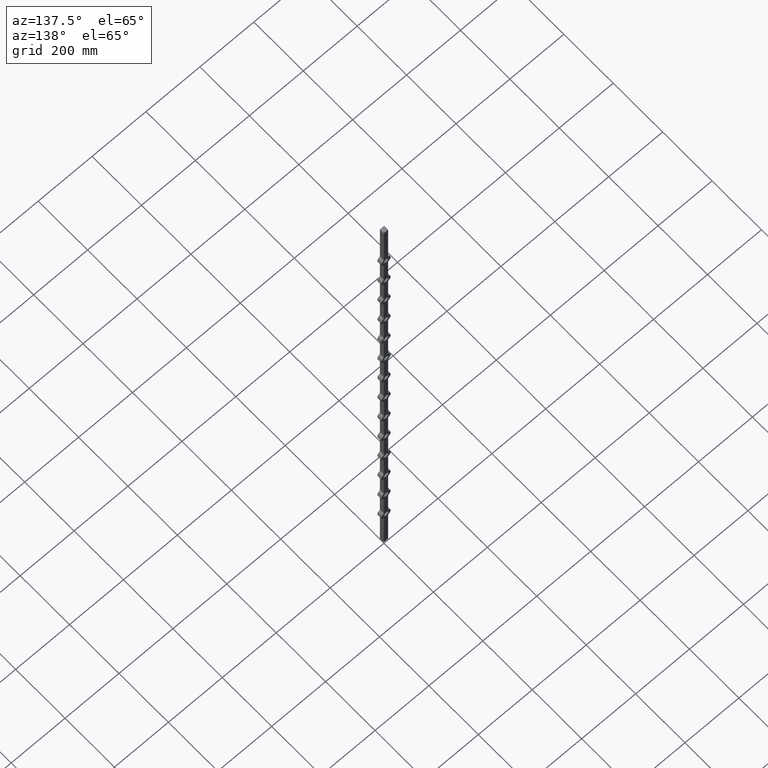
[diagram: clean part render]
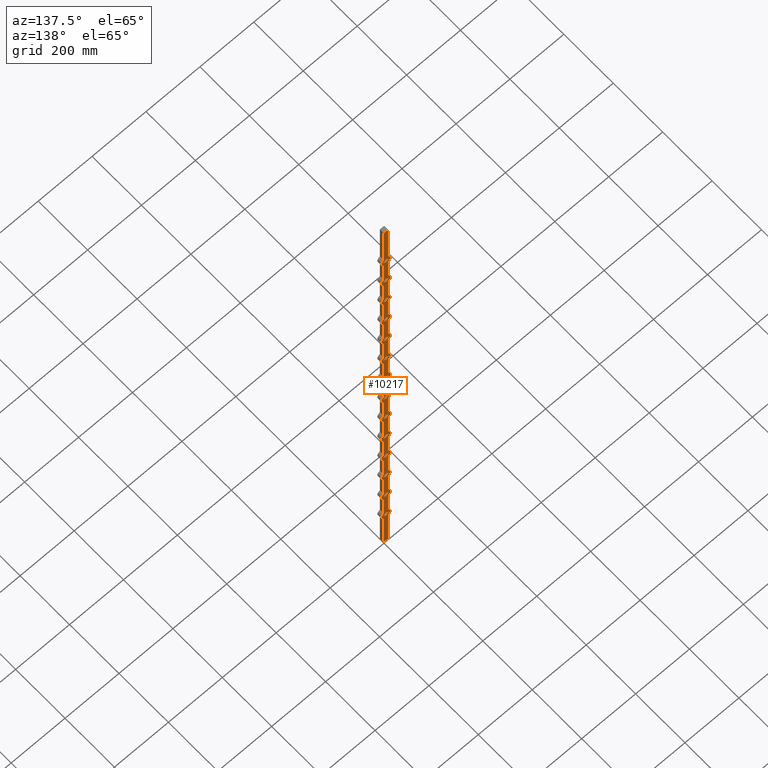
[diagram: same view with one face highlighted and labeled with its STEP entity id]
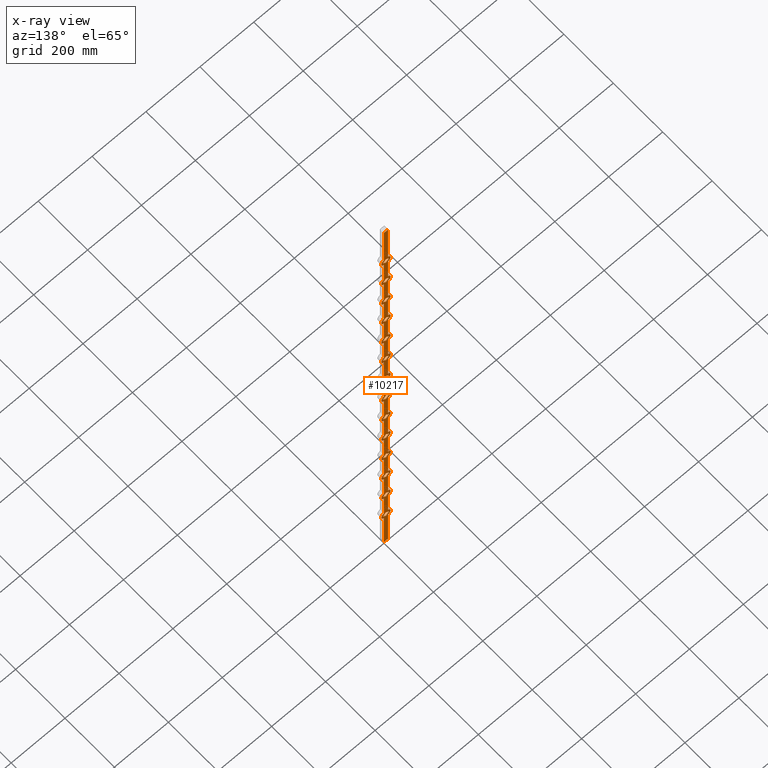
[diagram: x-ray of the same camera — body ghosted, the highlighted face saturated]
A machine part, auxiliary view. The second image highlights one B-rep face of the part: STEP entity #10217.
The next image is the same camera in x-ray: the body ghosted, the highlighted face saturated — about 0% of this face is hidden behind the body in this view.
In plain terms, the highlighted planar face has unit normal (0, -1, 0).
Its self-contained STEP definition (entity closure, byte-faithful):
#1 = ORIENTED_EDGE ( 'NONE', *, *, #13588, .T. ) ;
#6 = CARTESIAN_POINT ( 'NONE',  ( -8.000000000000000000, 8.000000000000000000, 1000.000000000000000 ) ) ;
#33 = VECTOR ( 'NONE', #1622, 1000.000000000000000 ) ;
#37 = CARTESIAN_POINT ( 'NONE',  ( 8.000000000000000000, 8.000000000000000000, -466.5643824162734745 ) ) ;
#49 = CARTESIAN_POINT ( 'NONE',  ( -7.999999999999960032, 8.000000000000000000, -718.5643824162734745 ) ) ;
#64 = DIRECTION ( 'NONE',  ( -0.000000000000000000, -0.000000000000000000, -1.000000000000000000 ) ) ;
#77 = LINE ( 'NONE', #3454, #3496 ) ;
#120 = CIRCLE ( 'NONE', #3309, 17.49999999999996092 ) ;
#123 = ORIENTED_EDGE ( 'NONE', *, *, #10547, .T. ) ;
#173 = ORIENTED_EDGE ( 'NONE', *, *, #7356, .F. ) ;
#188 = EDGE_CURVE ( 'NONE', #12635, #9180, #13295, .T. ) ;
#189 = VECTOR ( 'NONE', #868, 1000.000000000000000 ) ;
#192 = ORIENTED_EDGE ( 'NONE', *, *, #7579, .T. ) ;
#203 = VECTOR ( 'NONE', #5220, 1000.000000000000000 ) ;
#232 = EDGE_CURVE ( 'NONE', #2585, #3235, #8853, .T. ) ;
#247 = CARTESIAN_POINT ( 'NONE',  ( 2.220446049250313081E-13, 8.000000000000000000, -313.6862915010150346 ) ) ;
#262 = CARTESIAN_POINT ( 'NONE',  ( 8.000000000000000000, 8.000000000000000000, 824.5643824162733608 ) ) ;
#304 = ORIENTED_EDGE ( 'NONE', *, *, #2091, .T. ) ;
#308 = DIRECTION ( 'NONE',  ( -0.7071067811865450192, -0.000000000000000000, 0.7071067811865500152 ) ) ;
#312 = CARTESIAN_POINT ( 'NONE',  ( 1.114661906669838345E-13, 8.000000000000000000, 442.3137084989849086 ) ) ;
#329 = DIRECTION ( 'NONE',  ( -0.7071067811865450192, -0.000000000000000000, 0.7071067811865500152 ) ) ;
#335 = CARTESIAN_POINT ( 'NONE',  ( -11.31370849898475228, 8.000000000000000000, -703.0000000000001137 ) ) ;
#340 = VERTEX_POINT ( 'NONE', #8743 ) ;
#346 = VECTOR ( 'NONE', #8965, 1000.000000000000000 ) ;
#351 = CARTESIAN_POINT ( 'NONE',  ( 11.31370849898475228, 8.000000000000000000, -451.0000000000000568 ) ) ;
#382 = CARTESIAN_POINT ( 'NONE',  ( 8.000000000000000000, 8.000000000000000000, -435.4356175837266960 ) ) ;
#405 = DIRECTION ( 'NONE',  ( 0.000000000000000000, 1.000000000000000000, 0.000000000000000000 ) ) ;
#450 = DIRECTION ( 'NONE',  ( 0.000000000000000000, 0.000000000000000000, 1.000000000000000000 ) ) ;
#488 = VERTEX_POINT ( 'NONE', #7504 ) ;
#500 = CARTESIAN_POINT ( 'NONE',  ( 1.110223024625156540E-13, 8.000000000000000000, -691.6862915010151482 ) ) ;
#508 = CARTESIAN_POINT ( 'NONE',  ( 0.000000000000000000, 8.000000000000000000, 682.9999999999998863 ) ) ;
#524 = VERTEX_POINT ( 'NONE', #5318 ) ;
#529 = DIRECTION ( 'NONE',  ( 0.7071067811865450192, -0.000000000000000000, 0.7071067811865500152 ) ) ;
#556 = VERTEX_POINT ( 'NONE', #8785 ) ;
#575 = VECTOR ( 'NONE', #8066, 1000.000000000000000 ) ;
#577 = CARTESIAN_POINT ( 'NONE',  ( -8.000000000000000000, 8.000000000000000000, 1000.000000000000000 ) ) ;
#579 = FACE_BOUND ( 'NONE', #7887, .T. ) ;
#614 = VECTOR ( 'NONE', #1340, 1000.000000000000000 ) ;
#618 = CARTESIAN_POINT ( 'NONE',  ( -11.31370849898475228, 8.000000000000000000, -199.0000000000000568 ) ) ;
#641 = DIRECTION ( 'NONE',  ( 0.000000000000000000, 1.000000000000000000, 0.000000000000000000 ) ) ;
#673 = VERTEX_POINT ( 'NONE', #13171 ) ;
#675 = EDGE_CURVE ( 'NONE', #1210, #10648, #12624, .T. ) ;
#692 = LINE ( 'NONE', #4234, #9107 ) ;
#714 = FACE_BOUND ( 'NONE', #4648, .T. ) ;
#717 = LINE ( 'NONE', #10563, #8083 ) ;
#739 = VERTEX_POINT ( 'NONE', #13362 ) ;
#751 = VERTEX_POINT ( 'NONE', #11272 ) ;
#788 = VECTOR ( 'NONE', #8543, 1000.000000000000000 ) ;
#809 = DIRECTION ( 'NONE',  ( -0.000000000000000000, -0.000000000000000000, -1.000000000000000000 ) ) ;
#822 = CARTESIAN_POINT ( 'NONE',  ( 1.114661906669838345E-13, 8.000000000000000000, 419.6862915010149777 ) ) ;
#828 = VERTEX_POINT ( 'NONE', #13504 ) ;
#834 = DIRECTION ( 'NONE',  ( 0.000000000000000000, 0.000000000000000000, 1.000000000000000000 ) ) ;
#844 = EDGE_LOOP ( 'NONE', ( #10101, #2368, #8972, #3984 ) ) ;
#868 = DIRECTION ( 'NONE',  ( 0.7071067811865450192, -0.000000000000000000, 0.7071067811865500152 ) ) ;
#879 = LINE ( 'NONE', #11806, #11019 ) ;
#880 = VECTOR ( 'NONE', #13344, 1000.000000000000000 ) ;
#895 = AXIS2_PLACEMENT_3D ( 'NONE', #5711, #3578, #11171 ) ;
#898 = DIRECTION ( 'NONE',  ( 0.000000000000000000, 0.000000000000000000, 1.000000000000000000 ) ) ;
#916 = CARTESIAN_POINT ( 'NONE',  ( 0.000000000000000000, 8.000000000000000000, 808.9999999999998863 ) ) ;
#920 = VERTEX_POINT ( 'NONE', #10855 ) ;
#923 = CARTESIAN_POINT ( 'NONE',  ( 0.000000000000000000, 8.000000000000000000, -199.0000000000000568 ) ) ;
#930 = CARTESIAN_POINT ( 'NONE',  ( 1.114661906669838345E-13, 8.000000000000000000, 64.31370849898488018 ) ) ;
#939 = CARTESIAN_POINT ( 'NONE',  ( 8.000000000000000000, 8.000000000000000000, 1000.000000000000000 ) ) ;
#944 = DIRECTION ( 'NONE',  ( -0.7071067811865381358, -0.000000000000000000, -0.7071067811865570096 ) ) ;
#954 = CARTESIAN_POINT ( 'NONE',  ( -11.31370849898475228, 8.000000000000000000, -324.9999999999999432 ) ) ;
#956 = EDGE_CURVE ( 'NONE', #5238, #4841, #9878, .T. ) ;
#972 = CARTESIAN_POINT ( 'NONE',  ( 2.220446049250313081E-13, 8.000000000000000000, -565.6862915010153756 ) ) ;
#981 = ORIENTED_EDGE ( 'NONE', *, *, #6991, .T. ) ;
#986 = VERTEX_POINT ( 'NONE', #8712 ) ;
#997 = EDGE_CURVE ( 'NONE', #1770, #7878, #11926, .T. ) ;
#1008 = DIRECTION ( 'NONE',  ( -0.000000000000000000, -0.000000000000000000, -1.000000000000000000 ) ) ;
#1020 = DIRECTION ( 'NONE',  ( 0.000000000000000000, 1.000000000000000000, 0.000000000000000000 ) ) ;
#1054 = VERTEX_POINT ( 'NONE', #1251 ) ;
#1055 = FACE_BOUND ( 'NONE', #844, .T. ) ;
#1063 = CARTESIAN_POINT ( 'NONE',  ( -11.31370849898475228, 8.000000000000000000, 178.9999999999999432 ) ) ;
#1064 = DIRECTION ( 'NONE',  ( -0.7071067811865381358, -0.000000000000000000, -0.7071067811865570096 ) ) ;
#1080 = VECTOR ( 'NONE', #11597, 1000.000000000000000 ) ;
#1084 = EDGE_CURVE ( 'NONE', #3750, #7549, #6263, .T. ) ;
#1089 = CARTESIAN_POINT ( 'NONE',  ( -7.999999999999960032, 8.000000000000000000, 572.5643824162733608 ) ) ;
#1092 = CARTESIAN_POINT ( 'NONE',  ( -11.31370849898475228, 8.000000000000000000, 556.9999999999998863 ) ) ;
#1120 = LINE ( 'NONE', #5607, #2504 ) ;
#1160 = CARTESIAN_POINT ( 'NONE',  ( -8.000000000000000000, 8.000000000000000000, 1000.000000000000000 ) ) ;
#1163 = CARTESIAN_POINT ( 'NONE',  ( 8.000000000000000000, 8.000000000000000000, -1000.000000000000000 ) ) ;
#1174 = ORIENTED_EDGE ( 'NONE', *, *, #11831, .F. ) ;
#1180 = CARTESIAN_POINT ( 'NONE',  ( 0.000000000000000000, 8.000000000000000000, -73.00000000000007105 ) ) ;
#1191 = AXIS2_PLACEMENT_3D ( 'NONE', #11776, #12919, #898 ) ;
#1209 = VERTEX_POINT ( 'NONE', #8342 ) ;
#1210 = VERTEX_POINT ( 'NONE', #8383 ) ;
#1211 = DIRECTION ( 'NONE',  ( -0.000000000000000000, -0.000000000000000000, -1.000000000000000000 ) ) ;
#1251 = CARTESIAN_POINT ( 'NONE',  ( -8.000000000000000000, 8.000000000000000000, -466.5643824162734745 ) ) ;
#1259 = ORIENTED_EDGE ( 'NONE', *, *, #9792, .F. ) ;
#1275 = EDGE_LOOP ( 'NONE', ( #8421, #7089, #10112, #5162 ) ) ;
#1334 = ORIENTED_EDGE ( 'NONE', *, *, #2218, .F. ) ;
#1340 = DIRECTION ( 'NONE',  ( -0.7071067811865450192, -0.000000000000000000, 0.7071067811865500152 ) ) ;
#1380 = DIRECTION ( 'NONE',  ( 0.7071067811865450192, -0.000000000000000000, 0.7071067811865500152 ) ) ;
#1388 = VERTEX_POINT ( 'NONE', #6644 ) ;
#1410 = ORIENTED_EDGE ( 'NONE', *, *, #12196, .F. ) ;
#1421 = DIRECTION ( 'NONE',  ( 0.000000000000000000, 1.000000000000000000, 0.000000000000000000 ) ) ;
#1430 = CARTESIAN_POINT ( 'NONE',  ( 8.000000000000000000, 8.000000000000000000, -813.4356175837265255 ) ) ;
#1449 = CARTESIAN_POINT ( 'NONE',  ( 11.31370849898475228, 8.000000000000000000, -199.0000000000000568 ) ) ;
#1453 = CARTESIAN_POINT ( 'NONE',  ( 1.114661906669838345E-13, 8.000000000000000000, -61.68629150101511982 ) ) ;
#1524 = DIRECTION ( 'NONE',  ( -0.7071067811865450192, -0.000000000000000000, 0.7071067811865500152 ) ) ;
#1560 = DIRECTION ( 'NONE',  ( -0.7071067811865381358, -0.000000000000000000, -0.7071067811865570096 ) ) ;
#1574 = LINE ( 'NONE', #2945, #189 ) ;
#1577 = ORIENTED_EDGE ( 'NONE', *, *, #3901, .F. ) ;
#1610 = CARTESIAN_POINT ( 'NONE',  ( 8.000000000000000000, 8.000000000000000000, -844.5643824162733608 ) ) ;
#1622 = DIRECTION ( 'NONE',  ( 0.7071067811865381358, -0.000000000000000000, -0.7071067811865570096 ) ) ;
#1625 = EDGE_CURVE ( 'NONE', #1793, #2897, #10042, .T. ) ;
#1643 = AXIS2_PLACEMENT_3D ( 'NONE', #923, #2073, #10953 ) ;
#1649 = VERTEX_POINT ( 'NONE', #8701 ) ;
#1655 = CARTESIAN_POINT ( 'NONE',  ( -11.31370849898475228, 8.000000000000000000, 304.9999999999999432 ) ) ;
#1659 = VECTOR ( 'NONE', #2967, 1000.000000000000000 ) ;
#1689 = VERTEX_POINT ( 'NONE', #1089 ) ;
#1699 = LINE ( 'NONE', #10773, #11472 ) ;
#1714 = ORIENTED_EDGE ( 'NONE', *, *, #5329, .T. ) ;
#1743 = CIRCLE ( 'NONE', #13645, 17.50000000000001421 ) ;
#1755 = VERTEX_POINT ( 'NONE', #2667 ) ;
#1770 = VERTEX_POINT ( 'NONE', #7990 ) ;
#1776 = DIRECTION ( 'NONE',  ( 0.000000000000000000, -1.000000000000000000, 0.000000000000000000 ) ) ;
#1780 = LINE ( 'NONE', #312, #5045 ) ;
#1793 = VERTEX_POINT ( 'NONE', #3760 ) ;
#1797 = VERTEX_POINT ( 'NONE', #12540 ) ;
#1798 = DIRECTION ( 'NONE',  ( 0.7071067811865381358, -0.000000000000000000, -0.7071067811865570096 ) ) ;
#1810 = DIRECTION ( 'NONE',  ( -0.000000000000000000, -0.000000000000000000, -1.000000000000000000 ) ) ;
#1827 = LINE ( 'NONE', #6, #13118 ) ;
#1833 = VERTEX_POINT ( 'NONE', #8406 ) ;
#1835 = CARTESIAN_POINT ( 'NONE',  ( 0.000000000000000000, 8.000000000000000000, 556.9999999999998863 ) ) ;
#1843 = EDGE_CURVE ( 'NONE', #10648, #4925, #13788, .T. ) ;
#1844 = CARTESIAN_POINT ( 'NONE',  ( 1.114661906669838345E-13, 8.000000000000000000, 797.6862915010150346 ) ) ;
#1882 = VERTEX_POINT ( 'NONE', #11579 ) ;
#1883 = CARTESIAN_POINT ( 'NONE',  ( 8.000000000000000000, 8.000000000000000000, -183.4356175837266676 ) ) ;
#1886 = CARTESIAN_POINT ( 'NONE',  ( 8.000000000000000000, 8.000000000000000000, 415.4356175837265255 ) ) ;
#1891 = VERTEX_POINT ( 'NONE', #6206 ) ;
#1906 = CARTESIAN_POINT ( 'NONE',  ( 11.31370849898475228, 8.000000000000000000, 682.9999999999998863 ) ) ;
#1986 = VERTEX_POINT ( 'NONE', #8506 ) ;
#1996 = ORIENTED_EDGE ( 'NONE', *, *, #12227, .F. ) ;
#2027 = EDGE_CURVE ( 'NONE', #2754, #1986, #8290, .T. ) ;
#2037 = VERTEX_POINT ( 'NONE', #10742 ) ;
#2066 = ORIENTED_EDGE ( 'NONE', *, *, #13151, .F. ) ;
#2073 = DIRECTION ( 'NONE',  ( 0.000000000000000000, 1.000000000000000000, 0.000000000000000000 ) ) ;
#2074 = VECTOR ( 'NONE', #3270, 1000.000000000000000 ) ;
#2085 = LINE ( 'NONE', #10975, #3976 ) ;
#2091 = EDGE_CURVE ( 'NONE', #3235, #7635, #8450, .T. ) ;
#2109 = CARTESIAN_POINT ( 'NONE',  ( -7.999999999999960032, 8.000000000000000000, 667.4356175837265255 ) ) ;
#2190 = LINE ( 'NONE', #10970, #6823 ) ;
#2198 = ORIENTED_EDGE ( 'NONE', *, *, #7336, .T. ) ;
#2217 = EDGE_LOOP ( 'NONE', ( #6365, #9708, #6697, #12658, #2254, #4126, #9962, #13545, #13017, #1714, #11225, #6342, #12160, #192, #11629, #7843, #9126, #7790, #1259, #3756, #9753, #8207, #12778, #9313, #8393, #3926, #10344, #2198, #7420, #5337, #10780, #1, #13445, #12864, #14186, #14091, #8201, #12876, #5986, #5488, #3243, #11545, #4826, #12310, #2716, #304, #981, #10459, #3267, #123, #6158, #12683, #9836, #13146, #11712, #6312, #5095, #12218, #8369, #8216 ) ) ;
#2218 = EDGE_CURVE ( 'NONE', #4502, #13398, #9835, .T. ) ;
#2219 = DIRECTION ( 'NONE',  ( -0.000000000000000000, -0.000000000000000000, -1.000000000000000000 ) ) ;
#2236 = LINE ( 'NONE', #5271, #4632 ) ;
#2254 = ORIENTED_EDGE ( 'NONE', *, *, #5467, .F. ) ;
#2280 = DIRECTION ( 'NONE',  ( 0.000000000000000000, 1.000000000000000000, 0.000000000000000000 ) ) ;
#2300 = VERTEX_POINT ( 'NONE', #13202 ) ;
#2307 = CIRCLE ( 'NONE', #8919, 17.50000000000001421 ) ;
#2319 = DIRECTION ( 'NONE',  ( 0.7071067811865381358, -0.000000000000000000, -0.7071067811865570096 ) ) ;
#2323 = CARTESIAN_POINT ( 'NONE',  ( -11.31370849898475228, 8.000000000000000000, -577.0000000000002274 ) ) ;
#2368 = ORIENTED_EDGE ( 'NONE', *, *, #11970, .F. ) ;
#2391 = ORIENTED_EDGE ( 'NONE', *, *, #11542, .F. ) ;
#2394 = EDGE_CURVE ( 'NONE', #11332, #5705, #2965, .T. ) ;
#2420 = VECTOR ( 'NONE', #4489, 1000.000000000000000 ) ;
#2436 = CARTESIAN_POINT ( 'NONE',  ( 11.31370849898475228, 8.000000000000000000, -577.0000000000002274 ) ) ;
#2443 = CARTESIAN_POINT ( 'NONE',  ( -8.000000000000000000, 8.000000000000000000, 1000.000000000000000 ) ) ;
#2470 = DIRECTION ( 'NONE',  ( 0.000000000000000000, 0.000000000000000000, 1.000000000000000000 ) ) ;
#2473 = VERTEX_POINT ( 'NONE', #12600 ) ;
#2478 = VECTOR ( 'NONE', #1810, 1000.000000000000000 ) ;
#2494 = CARTESIAN_POINT ( 'NONE',  ( -11.31370849898475228, 8.000000000000000000, 556.9999999999998863 ) ) ;
#2504 = VECTOR ( 'NONE', #9053, 1000.000000000000000 ) ;
#2518 = DIRECTION ( 'NONE',  ( -0.7071067811865381358, -0.000000000000000000, -0.7071067811865570096 ) ) ;
#2550 = VECTOR ( 'NONE', #12837, 1000.000000000000000 ) ;
#2563 = CARTESIAN_POINT ( 'NONE',  ( -11.31370849898475228, 8.000000000000000000, -451.0000000000000568 ) ) ;
#2583 = CIRCLE ( 'NONE', #6476, 17.49999999999996092 ) ;
#2585 = VERTEX_POINT ( 'NONE', #8948 ) ;
#2597 = LINE ( 'NONE', #5305, #6199 ) ;
#2632 = VECTOR ( 'NONE', #13415, 1000.000000000000000 ) ;
#2667 = CARTESIAN_POINT ( 'NONE',  ( 8.000000000000000000, 8.000000000000000000, 446.5643824162733040 ) ) ;
#2685 = VECTOR ( 'NONE', #9868, 1000.000000000000000 ) ;
#2697 = EDGE_CURVE ( 'NONE', #1986, #5141, #13232, .T. ) ;
#2703 = DIRECTION ( 'NONE',  ( 0.000000000000000000, 1.000000000000000000, 0.000000000000000000 ) ) ;
#2704 = DIRECTION ( 'NONE',  ( -0.7071067811865450192, -0.000000000000000000, 0.7071067811865500152 ) ) ;
#2713 = CARTESIAN_POINT ( 'NONE',  ( 2.220446049250313081E-13, 8.000000000000000000, -61.68629150101501324 ) ) ;
#2716 = ORIENTED_EDGE ( 'NONE', *, *, #232, .T. ) ;
#2730 = VERTEX_POINT ( 'NONE', #8137 ) ;
#2754 = VERTEX_POINT ( 'NONE', #5875 ) ;
#2771 = DIRECTION ( 'NONE',  ( 0.000000000000000000, 1.000000000000000000, 0.000000000000000000 ) ) ;
#2780 = EDGE_CURVE ( 'NONE', #488, #8029, #9128, .T. ) ;
#2793 = VECTOR ( 'NONE', #3576, 1000.000000000000000 ) ;
#2813 = CIRCLE ( 'NONE', #8668, 17.49999999999996092 ) ;
#2865 = LINE ( 'NONE', #5956, #8347 ) ;
#2867 = DIRECTION ( 'NONE',  ( 0.000000000000000000, 1.000000000000000000, 0.000000000000000000 ) ) ;
#2892 = CARTESIAN_POINT ( 'NONE',  ( 8.000000000000000000, 8.000000000000000000, 1000.000000000000000 ) ) ;
#2894 = EDGE_CURVE ( 'NONE', #9180, #5725, #7739, .T. ) ;
#2896 = CARTESIAN_POINT ( 'NONE',  ( 11.31370849898475228, 8.000000000000000000, 52.99999999999993605 ) ) ;
#2897 = VERTEX_POINT ( 'NONE', #6029 ) ;
#2898 = VERTEX_POINT ( 'NONE', #3875 ) ;
#2934 = CARTESIAN_POINT ( 'NONE',  ( 8.000000000000000000, 8.000000000000000000, -592.5643824162735882 ) ) ;
#2937 = VECTOR ( 'NONE', #64, 1000.000000000000000 ) ;
#2944 = VECTOR ( 'NONE', #1211, 1000.000000000000000 ) ;
#2945 = CARTESIAN_POINT ( 'NONE',  ( 1.114661906669838345E-13, 8.000000000000000000, 820.3137084989848518 ) ) ;
#2949 = DIRECTION ( 'NONE',  ( 0.7071067811865450192, -0.000000000000000000, 0.7071067811865500152 ) ) ;
#2955 = VERTEX_POINT ( 'NONE', #7180 ) ;
#2965 = LINE ( 'NONE', #12550, #2793 ) ;
#2967 = DIRECTION ( 'NONE',  ( -0.000000000000000000, -0.000000000000000000, -1.000000000000000000 ) ) ;
#2989 = CARTESIAN_POINT ( 'NONE',  ( 8.000000000000000000, 8.000000000000000000, 793.4356175837265255 ) ) ;
#3021 = AXIS2_PLACEMENT_3D ( 'NONE', #10699, #13968, #834 ) ;
#3041 = EDGE_CURVE ( 'NONE', #2730, #5972, #9637, .T. ) ;
#3076 = EDGE_CURVE ( 'NONE', #4589, #1388, #7062, .T. ) ;
#3099 = CARTESIAN_POINT ( 'NONE',  ( 1.114661906669838345E-13, 8.000000000000000000, 694.3137084989848518 ) ) ;
#3100 = EDGE_CURVE ( 'NONE', #1649, #4615, #11345, .T. ) ;
#3119 = VECTOR ( 'NONE', #12137, 1000.000000000000000 ) ;
#3136 = CARTESIAN_POINT ( 'NONE',  ( 0.000000000000000000, 8.000000000000000000, 304.9999999999999432 ) ) ;
#3140 = VERTEX_POINT ( 'NONE', #3510 ) ;
#3170 = AXIS2_PLACEMENT_3D ( 'NONE', #1835, #12803, #10629 ) ;
#3174 = VERTEX_POINT ( 'NONE', #1163 ) ;
#3179 = CARTESIAN_POINT ( 'NONE',  ( 0.000000000000000000, 8.000000000000000000, 178.9999999999999432 ) ) ;
#3197 = ORIENTED_EDGE ( 'NONE', *, *, #6236, .F. ) ;
#3202 = EDGE_CURVE ( 'NONE', #7934, #4163, #9455, .T. ) ;
#3213 = DIRECTION ( 'NONE',  ( -0.000000000000000000, -0.000000000000000000, -1.000000000000000000 ) ) ;
#3227 = EDGE_CURVE ( 'NONE', #6398, #10369, #1743, .T. ) ;
#3228 = CARTESIAN_POINT ( 'NONE',  ( -8.000000000000000000, 8.000000000000000000, 1000.000000000000000 ) ) ;
#3230 = ORIENTED_EDGE ( 'NONE', *, *, #5229, .F. ) ;
#3235 = VERTEX_POINT ( 'NONE', #3406 ) ;
#3243 = ORIENTED_EDGE ( 'NONE', *, *, #188, .T. ) ;
#3246 = EDGE_CURVE ( 'NONE', #6696, #12633, #4824, .T. ) ;
#3249 = CARTESIAN_POINT ( 'NONE',  ( 8.000000000000000000, 8.000000000000000000, 289.4356175837265255 ) ) ;
#3253 = ORIENTED_EDGE ( 'NONE', *, *, #1625, .F. ) ;
#3267 = ORIENTED_EDGE ( 'NONE', *, *, #11709, .T. ) ;
#3269 = CARTESIAN_POINT ( 'NONE',  ( 0.000000000000000000, 8.000000000000000000, 682.9999999999998863 ) ) ;
#3270 = DIRECTION ( 'NONE',  ( -0.7071067811865450192, -0.000000000000000000, 0.7071067811865500152 ) ) ;
#3276 = CARTESIAN_POINT ( 'NONE',  ( 1.665334536937734811E-13, 8.000000000000000000, 442.3137084989848518 ) ) ;
#3306 = CIRCLE ( 'NONE', #8394, 17.49999999999996092 ) ;
#3309 = AXIS2_PLACEMENT_3D ( 'NONE', #5778, #1421, #450 ) ;
#3320 = DIRECTION ( 'NONE',  ( 0.000000000000000000, 1.000000000000000000, 0.000000000000000000 ) ) ;
#3357 = CARTESIAN_POINT ( 'NONE',  ( 1.114661906669838345E-13, 8.000000000000000000, 671.6862915010150346 ) ) ;
#3360 = CARTESIAN_POINT ( 'NONE',  ( -8.000000000000000000, 8.000000000000000000, -214.5643824162734461 ) ) ;
#3362 = EDGE_CURVE ( 'NONE', #4298, #10089, #10673, .T. ) ;
#3371 = DIRECTION ( 'NONE',  ( 0.000000000000000000, 0.000000000000000000, 1.000000000000000000 ) ) ;
#3406 = CARTESIAN_POINT ( 'NONE',  ( 8.000000000000000000, 8.000000000000000000, -57.43561758372667470 ) ) ;
#3413 = ORIENTED_EDGE ( 'NONE', *, *, #2027, .F. ) ;
#3423 = ORIENTED_EDGE ( 'NONE', *, *, #13303, .F. ) ;
#3443 = DIRECTION ( 'NONE',  ( 0.7071067811865450192, -0.000000000000000000, 0.7071067811865500152 ) ) ;
#3454 = CARTESIAN_POINT ( 'NONE',  ( -11.31370849898475228, 8.000000000000000000, 52.99999999999993605 ) ) ;
#3483 = ORIENTED_EDGE ( 'NONE', *, *, #10149, .F. ) ;
#3496 = VECTOR ( 'NONE', #4562, 1000.000000000000000 ) ;
#3510 = CARTESIAN_POINT ( 'NONE',  ( 1.110223024625156540E-13, 8.000000000000000000, 64.31370849898488018 ) ) ;
#3514 = EDGE_LOOP ( 'NONE', ( #8545, #3413, #1410, #7333 ) ) ;
#3517 = EDGE_CURVE ( 'NONE', #13398, #10710, #717, .T. ) ;
#3527 = DIRECTION ( 'NONE',  ( 0.7071067811865381358, -0.000000000000000000, -0.7071067811865570096 ) ) ;
#3531 = EDGE_CURVE ( 'NONE', #5705, #920, #4337, .T. ) ;
#3539 = AXIS2_PLACEMENT_3D ( 'NONE', #7381, #12845, #13900 ) ;
#3576 = DIRECTION ( 'NONE',  ( -0.000000000000000000, -0.000000000000000000, -1.000000000000000000 ) ) ;
#3578 = DIRECTION ( 'NONE',  ( 0.000000000000000000, 1.000000000000000000, 0.000000000000000000 ) ) ;
#3585 = CARTESIAN_POINT ( 'NONE',  ( 11.31370849898475228, 8.000000000000000000, -73.00000000000007105 ) ) ;
#3586 = DIRECTION ( 'NONE',  ( 0.000000000000000000, 0.000000000000000000, 1.000000000000000000 ) ) ;
#3600 = DIRECTION ( 'NONE',  ( 0.000000000000000000, 1.000000000000000000, 0.000000000000000000 ) ) ;
#3601 = LINE ( 'NONE', #9951, #8588 ) ;
#3606 = DIRECTION ( 'NONE',  ( -0.000000000000000000, -0.000000000000000000, -1.000000000000000000 ) ) ;
#3621 = VECTOR ( 'NONE', #10134, 1000.000000000000000 ) ;
#3655 = LINE ( 'NONE', #6389, #12049 ) ;
#3672 = DIRECTION ( 'NONE',  ( 0.000000000000000000, 0.000000000000000000, 1.000000000000000000 ) ) ;
#3673 = VECTOR ( 'NONE', #8225, 1000.000000000000000 ) ;
#3696 = CARTESIAN_POINT ( 'NONE',  ( -11.31370849898475228, 8.000000000000000000, 430.9999999999999432 ) ) ;
#3728 = AXIS2_PLACEMENT_3D ( 'NONE', #5609, #6949, #13258 ) ;
#3750 = VERTEX_POINT ( 'NONE', #1430 ) ;
#3756 = ORIENTED_EDGE ( 'NONE', *, *, #3362, .T. ) ;
#3760 = CARTESIAN_POINT ( 'NONE',  ( 11.31370849898475228, 8.000000000000000000, -73.00000000000007105 ) ) ;
#3763 = CARTESIAN_POINT ( 'NONE',  ( -7.999999999999960032, 8.000000000000000000, -813.4356175837265255 ) ) ;
#3768 = VECTOR ( 'NONE', #7494, 1000.000000000000000 ) ;
#3802 = VECTOR ( 'NONE', #3443, 1000.000000000000000 ) ;
#3824 = VERTEX_POINT ( 'NONE', #8278 ) ;
#3834 = LINE ( 'NONE', #11499, #11553 ) ;
#3875 = CARTESIAN_POINT ( 'NONE',  ( 1.114661906669838345E-13, 8.000000000000000000, 293.6862915010149777 ) ) ;
#3901 = EDGE_CURVE ( 'NONE', #13257, #9850, #8439, .T. ) ;
#3917 = DIRECTION ( 'NONE',  ( -0.000000000000000000, -0.000000000000000000, -1.000000000000000000 ) ) ;
#3922 = CARTESIAN_POINT ( 'NONE',  ( -8.000000000000000000, 8.000000000000000000, 1000.000000000000000 ) ) ;
#3926 = ORIENTED_EDGE ( 'NONE', *, *, #10605, .T. ) ;
#3943 = LINE ( 'NONE', #2892, #14032 ) ;
#3950 = VECTOR ( 'NONE', #2219, 1000.000000000000000 ) ;
#3968 = CARTESIAN_POINT ( 'NONE',  ( 0.000000000000000000, 8.000000000000000000, 178.9999999999999432 ) ) ;
#3972 = LINE ( 'NONE', #1160, #2944 ) ;
#3976 = VECTOR ( 'NONE', #12161, 1000.000000000000000 ) ;
#3984 = ORIENTED_EDGE ( 'NONE', *, *, #12432, .F. ) ;
#4011 = AXIS2_PLACEMENT_3D ( 'NONE', #1180, #2280, #3371 ) ;
#4033 = EDGE_CURVE ( 'NONE', #7878, #7924, #879, .T. ) ;
#4044 = VECTOR ( 'NONE', #10212, 1000.000000000000000 ) ;
#4047 = CARTESIAN_POINT ( 'NONE',  ( 1.114661906669838345E-13, 8.000000000000000000, -691.6862915010151482 ) ) ;
#4051 = EDGE_CURVE ( 'NONE', #1054, #5479, #13566, .T. ) ;
#4092 = VECTOR ( 'NONE', #809, 1000.000000000000000 ) ;
#4095 = AXIS2_PLACEMENT_3D ( 'NONE', #8417, #2867, #7271 ) ;
#4126 = ORIENTED_EDGE ( 'NONE', *, *, #6492, .T. ) ;
#4141 = EDGE_CURVE ( 'NONE', #7934, #7662, #7911, .T. ) ;
#4163 = VERTEX_POINT ( 'NONE', #262 ) ;
#4178 = DIRECTION ( 'NONE',  ( -0.7071067811865450192, -0.000000000000000000, 0.7071067811865500152 ) ) ;
#4182 = FACE_BOUND ( 'NONE', #4633, .T. ) ;
#4194 = LINE ( 'NONE', #1063, #11058 ) ;
#4207 = VECTOR ( 'NONE', #8656, 1000.000000000000000 ) ;
#4211 = ORIENTED_EDGE ( 'NONE', *, *, #8043, .F. ) ;
#4234 = CARTESIAN_POINT ( 'NONE',  ( 11.31370849898475228, 8.000000000000000000, 304.9999999999999432 ) ) ;
#4272 = VERTEX_POINT ( 'NONE', #500 ) ;
#4293 = ORIENTED_EDGE ( 'NONE', *, *, #7687, .F. ) ;
#4298 = VERTEX_POINT ( 'NONE', #10492 ) ;
#4310 = LINE ( 'NONE', #8595, #7541 ) ;
#4337 = CIRCLE ( 'NONE', #13458, 17.49999999999996092 ) ;
#4345 = DIRECTION ( 'NONE',  ( -0.000000000000000000, -0.000000000000000000, -1.000000000000000000 ) ) ;
#4374 = CARTESIAN_POINT ( 'NONE',  ( 1.114661906669838345E-13, 8.000000000000000000, 167.6862915010150061 ) ) ;
#4402 = CIRCLE ( 'NONE', #11936, 17.50000000000001421 ) ;
#4422 = VECTOR ( 'NONE', #13001, 1000.000000000000000 ) ;
#4463 = ORIENTED_EDGE ( 'NONE', *, *, #5853, .F. ) ;
#4479 = CARTESIAN_POINT ( 'NONE',  ( -8.000000000000000000, 8.000000000000000000, -1000.000000000000000 ) ) ;
#4480 = CARTESIAN_POINT ( 'NONE',  ( 1.114661906669838345E-13, 8.000000000000000000, -588.3137084989850791 ) ) ;
#4489 = DIRECTION ( 'NONE',  ( 0.7071067811865450192, -0.000000000000000000, 0.7071067811865500152 ) ) ;
#4502 = VERTEX_POINT ( 'NONE', #10546 ) ;
#4550 = LINE ( 'NONE', #12821, #9703 ) ;
#4556 = EDGE_CURVE ( 'NONE', #6761, #12635, #9626, .T. ) ;
#4562 = DIRECTION ( 'NONE',  ( -0.7071067811865450192, -0.000000000000000000, 0.7071067811865500152 ) ) ;
#4563 = DIRECTION ( 'NONE',  ( -0.7071067811865381358, -0.000000000000000000, -0.7071067811865570096 ) ) ;
#4589 = VERTEX_POINT ( 'NONE', #3360 ) ;
#4615 = VERTEX_POINT ( 'NONE', #2323 ) ;
#4623 = DIRECTION ( 'NONE',  ( -1.000000000000000000, -0.000000000000000000, -0.000000000000000000 ) ) ;
#4632 = VECTOR ( 'NONE', #7327, 1000.000000000000000 ) ;
#4633 = EDGE_LOOP ( 'NONE', ( #1577, #8259, #4463, #9490 ) ) ;
#4648 = EDGE_LOOP ( 'NONE', ( #11222, #12101, #12816, #11215 ) ) ;
#4683 = AXIS2_PLACEMENT_3D ( 'NONE', #12056, #9825, #5546 ) ;
#4720 = CARTESIAN_POINT ( 'NONE',  ( 11.31370849898475228, 8.000000000000000000, 808.9999999999998863 ) ) ;
#4749 = VERTEX_POINT ( 'NONE', #7971 ) ;
#4759 = CARTESIAN_POINT ( 'NONE',  ( 0.000000000000000000, 8.000000000000000000, -577.0000000000002274 ) ) ;
#4761 = EDGE_CURVE ( 'NONE', #5141, #5843, #12008, .T. ) ;
#4796 = LINE ( 'NONE', #3696, #10113 ) ;
#4812 = EDGE_CURVE ( 'NONE', #2473, #11485, #3601, .T. ) ;
#4824 = LINE ( 'NONE', #7867, #11000 ) ;
#4826 = ORIENTED_EDGE ( 'NONE', *, *, #10873, .T. ) ;
#4838 = CIRCLE ( 'NONE', #4095, 17.50000000000001421 ) ;
#4841 = VERTEX_POINT ( 'NONE', #5101 ) ;
#4848 = FACE_OUTER_BOUND ( 'NONE', #2217, .T. ) ;
#4925 = VERTEX_POINT ( 'NONE', #11777 ) ;
#4954 = VECTOR ( 'NONE', #13401, 1000.000000000000000 ) ;
#4962 = EDGE_CURVE ( 'NONE', #1891, #2037, #10835, .T. ) ;
#4967 = DIRECTION ( 'NONE',  ( 0.000000000000000000, 0.000000000000000000, 1.000000000000000000 ) ) ;
#4996 = ORIENTED_EDGE ( 'NONE', *, *, #4033, .F. ) ;
#5004 = VECTOR ( 'NONE', #7730, 1000.000000000000000 ) ;
#5045 = VECTOR ( 'NONE', #1380, 1000.000000000000000 ) ;
#5056 = VERTEX_POINT ( 'NONE', #13871 ) ;
#5091 = DIRECTION ( 'NONE',  ( 0.000000000000000000, 1.000000000000000000, 0.000000000000000000 ) ) ;
#5095 = ORIENTED_EDGE ( 'NONE', *, *, #12654, .T. ) ;
#5101 = CARTESIAN_POINT ( 'NONE',  ( -11.31370849898475228, 8.000000000000000000, -829.0000000000000000 ) ) ;
#5122 = CARTESIAN_POINT ( 'NONE',  ( 0.000000000000000000, 8.000000000000000000, -703.0000000000001137 ) ) ;
#5141 = VERTEX_POINT ( 'NONE', #1906 ) ;
#5148 = CARTESIAN_POINT ( 'NONE',  ( 11.31370849898475228, 8.000000000000000000, -829.0000000000000000 ) ) ;
#5162 = ORIENTED_EDGE ( 'NONE', *, *, #8336, .F. ) ;
#5168 = DIRECTION ( 'NONE',  ( 0.000000000000000000, 1.000000000000000000, 0.000000000000000000 ) ) ;
#5220 = DIRECTION ( 'NONE',  ( -0.000000000000000000, -0.000000000000000000, -1.000000000000000000 ) ) ;
#5229 = EDGE_CURVE ( 'NONE', #10695, #2898, #13005, .T. ) ;
#5238 = VERTEX_POINT ( 'NONE', #11919 ) ;
#5264 = VECTOR ( 'NONE', #1560, 1000.000000000000000 ) ;
#5271 = CARTESIAN_POINT ( 'NONE',  ( -8.000000000000000000, 8.000000000000000000, 1000.000000000000000 ) ) ;
#5288 = CIRCLE ( 'NONE', #6607, 17.50000000000001421 ) ;
#5298 = EDGE_LOOP ( 'NONE', ( #8379, #7841, #3423, #3230 ) ) ;
#5305 = CARTESIAN_POINT ( 'NONE',  ( 11.31370849898475228, 8.000000000000000000, -324.9999999999999432 ) ) ;
#5318 = CARTESIAN_POINT ( 'NONE',  ( 1.114661906669838345E-13, 8.000000000000000000, -462.3137084989850223 ) ) ;
#5329 = EDGE_CURVE ( 'NONE', #7177, #340, #7876, .T. ) ;
#5337 = ORIENTED_EDGE ( 'NONE', *, *, #4141, .F. ) ;
#5398 = LINE ( 'NONE', #13190, #7783 ) ;
#5431 = CARTESIAN_POINT ( 'NONE',  ( -11.31370849898475228, 8.000000000000000000, -577.0000000000002274 ) ) ;
#5437 = CARTESIAN_POINT ( 'NONE',  ( -8.000000000000000000, 8.000000000000000000, -340.5643824162733608 ) ) ;
#5464 = CARTESIAN_POINT ( 'NONE',  ( -8.000000000000000000, 8.000000000000000000, 1000.000000000000000 ) ) ;
#5467 = EDGE_CURVE ( 'NONE', #1833, #8573, #11306, .T. ) ;
#5479 = VERTEX_POINT ( 'NONE', #11429 ) ;
#5488 = ORIENTED_EDGE ( 'NONE', *, *, #4556, .T. ) ;
#5529 = VECTOR ( 'NONE', #11173, 1000.000000000000000 ) ;
#5541 = LINE ( 'NONE', #9028, #2632 ) ;
#5546 = DIRECTION ( 'NONE',  ( 0.000000000000000000, 0.000000000000000000, 1.000000000000000000 ) ) ;
#5584 = VERTEX_POINT ( 'NONE', #9470 ) ;
#5607 = CARTESIAN_POINT ( 'NONE',  ( 1.114661906669838345E-13, 8.000000000000000000, 419.6862915010149777 ) ) ;
#5609 = CARTESIAN_POINT ( 'NONE',  ( 0.000000000000000000, 8.000000000000000000, -829.0000000000000000 ) ) ;
#5613 = DIRECTION ( 'NONE',  ( -0.000000000000000000, -0.000000000000000000, -1.000000000000000000 ) ) ;
#5619 = VERTEX_POINT ( 'NONE', #11623 ) ;
#5634 = VERTEX_POINT ( 'NONE', #1886 ) ;
#5636 = LINE ( 'NONE', #6568, #6488 ) ;
#5653 = AXIS2_PLACEMENT_3D ( 'NONE', #5966, #2771, #3672 ) ;
#5658 = CARTESIAN_POINT ( 'NONE',  ( 1.114661906669838345E-13, 8.000000000000000000, 671.6862915010150346 ) ) ;
#5693 = ORIENTED_EDGE ( 'NONE', *, *, #10387, .F. ) ;
#5705 = VERTEX_POINT ( 'NONE', #10909 ) ;
#5711 = CARTESIAN_POINT ( 'NONE',  ( 0.000000000000000000, 8.000000000000000000, 304.9999999999999432 ) ) ;
#5718 = VERTEX_POINT ( 'NONE', #822 ) ;
#5724 = CARTESIAN_POINT ( 'NONE',  ( 1.114661906669838345E-13, 8.000000000000000000, -462.3137084989850223 ) ) ;
#5725 = VERTEX_POINT ( 'NONE', #6431 ) ;
#5747 = ORIENTED_EDGE ( 'NONE', *, *, #9137, .F. ) ;
#5776 = EDGE_CURVE ( 'NONE', #12129, #1797, #1699, .T. ) ;
#5778 = CARTESIAN_POINT ( 'NONE',  ( 0.000000000000000000, 8.000000000000000000, 808.9999999999998863 ) ) ;
#5799 = VECTOR ( 'NONE', #944, 1000.000000000000000 ) ;
#5801 = VERTEX_POINT ( 'NONE', #13272 ) ;
#5814 = EDGE_CURVE ( 'NONE', #986, #1649, #13689, .T. ) ;
#5843 = VERTEX_POINT ( 'NONE', #3357 ) ;
#5853 = EDGE_CURVE ( 'NONE', #5718, #6068, #4796, .T. ) ;
#5870 = CARTESIAN_POINT ( 'NONE',  ( 1.114661906669838345E-13, 8.000000000000000000, 167.6862915010150061 ) ) ;
#5875 = CARTESIAN_POINT ( 'NONE',  ( -11.31370849898475228, 8.000000000000000000, 682.9999999999998863 ) ) ;
#5879 = FACE_BOUND ( 'NONE', #1275, .T. ) ;
#5910 = LINE ( 'NONE', #2563, #13092 ) ;
#5922 = CARTESIAN_POINT ( 'NONE',  ( 11.31370849898475228, 8.000000000000000000, 682.9999999999998863 ) ) ;
#5929 = CARTESIAN_POINT ( 'NONE',  ( 11.31370849898475228, 8.000000000000000000, 304.9999999999999432 ) ) ;
#5936 = VECTOR ( 'NONE', #529, 1000.000000000000000 ) ;
#5939 = CARTESIAN_POINT ( 'NONE',  ( -8.000000000000000000, 8.000000000000000000, 320.5643824162733040 ) ) ;
#5956 = CARTESIAN_POINT ( 'NONE',  ( 8.000000000000000000, 8.000000000000000000, 1000.000000000000000 ) ) ;
#5966 = CARTESIAN_POINT ( 'NONE',  ( 0.000000000000000000, 8.000000000000000000, -324.9999999999999432 ) ) ;
#5972 = VERTEX_POINT ( 'NONE', #10426 ) ;
#5986 = ORIENTED_EDGE ( 'NONE', *, *, #12534, .T. ) ;
#6029 = CARTESIAN_POINT ( 'NONE',  ( 1.114661906669838345E-13, 8.000000000000000000, -84.31370849898500808 ) ) ;
#6045 = CARTESIAN_POINT ( 'NONE',  ( -8.000000000000000000, 8.000000000000000000, 1000.000000000000000 ) ) ;
#6062 = LINE ( 'NONE', #8140, #10024 ) ;
#6068 = VERTEX_POINT ( 'NONE', #7289 ) ;
#6071 = EDGE_CURVE ( 'NONE', #3824, #9831, #11465, .T. ) ;
#6090 = VERTEX_POINT ( 'NONE', #4374 ) ;
#6100 = ORIENTED_EDGE ( 'NONE', *, *, #956, .F. ) ;
#6123 = EDGE_CURVE ( 'NONE', #7100, #828, #12494, .T. ) ;
#6144 = DIRECTION ( 'NONE',  ( 0.000000000000000000, 0.000000000000000000, 1.000000000000000000 ) ) ;
#6158 = ORIENTED_EDGE ( 'NONE', *, *, #14109, .T. ) ;
#6193 = VECTOR ( 'NONE', #4623, 1000.000000000000000 ) ;
#6199 = VECTOR ( 'NONE', #12955, 1000.000000000000000 ) ;
#6200 = CARTESIAN_POINT ( 'NONE',  ( 11.31370849898475228, 8.000000000000000000, -199.0000000000000568 ) ) ;
#6206 = CARTESIAN_POINT ( 'NONE',  ( -8.000000000000000000, 8.000000000000000000, 793.4356175837265255 ) ) ;
#6233 = VERTEX_POINT ( 'NONE', #49 ) ;
#6236 = EDGE_CURVE ( 'NONE', #10710, #13615, #5636, .T. ) ;
#6263 = CIRCLE ( 'NONE', #3728, 17.49999999999996092 ) ;
#6269 = CARTESIAN_POINT ( 'NONE',  ( 1.114661906669838345E-13, 8.000000000000000000, 293.6862915010149777 ) ) ;
#6274 = EDGE_CURVE ( 'NONE', #739, #2585, #5288, .T. ) ;
#6279 = VECTOR ( 'NONE', #10176, 1000.000000000000000 ) ;
#6289 = DIRECTION ( 'NONE',  ( 0.7071067811865450192, -0.000000000000000000, 0.7071067811865500152 ) ) ;
#6311 = EDGE_CURVE ( 'NONE', #2897, #8536, #7499, .T. ) ;
#6312 = ORIENTED_EDGE ( 'NONE', *, *, #3531, .T. ) ;
#6315 = DIRECTION ( 'NONE',  ( 0.000000000000000000, 0.000000000000000000, 1.000000000000000000 ) ) ;
#6342 = ORIENTED_EDGE ( 'NONE', *, *, #3076, .T. ) ;
#6359 = VECTOR ( 'NONE', #6289, 1000.000000000000000 ) ;
#6365 = ORIENTED_EDGE ( 'NONE', *, *, #12064, .F. ) ;
#6377 = VECTOR ( 'NONE', #9088, 1000.000000000000000 ) ;
#6389 = CARTESIAN_POINT ( 'NONE',  ( 8.000000000000000000, 8.000000000000000000, 1000.000000000000000 ) ) ;
#6390 = EDGE_CURVE ( 'NONE', #828, #9106, #12312, .T. ) ;
#6398 = VERTEX_POINT ( 'NONE', #382 ) ;
#6431 = CARTESIAN_POINT ( 'NONE',  ( 8.000000000000000000, 8.000000000000000000, 163.4356175837265539 ) ) ;
#6444 = DIRECTION ( 'NONE',  ( 0.7071067811865450192, -0.000000000000000000, 0.7071067811865500152 ) ) ;
#6450 = LINE ( 'NONE', #2896, #788 ) ;
#6467 = EDGE_CURVE ( 'NONE', #3824, #2955, #12815, .T. ) ;
#6470 = DIRECTION ( 'NONE',  ( -0.7071067811865450192, -0.000000000000000000, 0.7071067811865500152 ) ) ;
#6476 = AXIS2_PLACEMENT_3D ( 'NONE', #916, #12033, #10942 ) ;
#6488 = VECTOR ( 'NONE', #6662, 1000.000000000000000 ) ;
#6492 = EDGE_CURVE ( 'NONE', #1833, #2300, #10621, .T. ) ;
#6498 = EDGE_CURVE ( 'NONE', #2730, #2955, #13322, .T. ) ;
#6519 = VECTOR ( 'NONE', #4563, 1000.000000000000000 ) ;
#6568 = CARTESIAN_POINT ( 'NONE',  ( -11.31370849898475228, 8.000000000000000000, 808.9999999999998863 ) ) ;
#6574 = CARTESIAN_POINT ( 'NONE',  ( 1.114661906669838345E-13, 8.000000000000000000, 545.6862915010150346 ) ) ;
#6593 = VECTOR ( 'NONE', #1798, 1000.000000000000000 ) ;
#6607 = AXIS2_PLACEMENT_3D ( 'NONE', #8106, #11304, #3586 ) ;
#6608 = EDGE_CURVE ( 'NONE', #10413, #2473, #7330, .T. ) ;
#6631 = LINE ( 'NONE', #8129, #5264 ) ;
#6644 = CARTESIAN_POINT ( 'NONE',  ( -8.000000000000000000, 8.000000000000000000, -183.4356175837266676 ) ) ;
#6646 = VERTEX_POINT ( 'NONE', #7694 ) ;
#6650 = AXIS2_PLACEMENT_3D ( 'NONE', #11720, #641, #10688 ) ;
#6662 = DIRECTION ( 'NONE',  ( -0.7071067811865450192, -0.000000000000000000, 0.7071067811865500152 ) ) ;
#6688 = EDGE_CURVE ( 'NONE', #4272, #11955, #2190, .T. ) ;
#6696 = VERTEX_POINT ( 'NONE', #1092 ) ;
#6697 = ORIENTED_EDGE ( 'NONE', *, *, #7879, .F. ) ;
#6717 = EDGE_CURVE ( 'NONE', #10972, #1770, #9058, .T. ) ;
#6741 = DIRECTION ( 'NONE',  ( -0.000000000000000000, -0.000000000000000000, -1.000000000000000000 ) ) ;
#6748 = FACE_BOUND ( 'NONE', #13691, .T. ) ;
#6749 = LINE ( 'NONE', #13817, #13252 ) ;
#6761 = VERTEX_POINT ( 'NONE', #11876 ) ;
#6792 = EDGE_CURVE ( 'NONE', #10836, #986, #10088, .T. ) ;
#6823 = VECTOR ( 'NONE', #13102, 1000.000000000000000 ) ;
#6839 = DIRECTION ( 'NONE',  ( -0.000000000000000000, -0.000000000000000000, -1.000000000000000000 ) ) ;
#6847 = ORIENTED_EDGE ( 'NONE', *, *, #12278, .F. ) ;
#6850 = CARTESIAN_POINT ( 'NONE',  ( 8.000000000000000000, 8.000000000000000000, 1000.000000000000000 ) ) ;
#6870 = EDGE_LOOP ( 'NONE', ( #1174, #4996, #13489, #11012 ) ) ;
#6895 = VECTOR ( 'NONE', #3917, 1000.000000000000000 ) ;
#6949 = DIRECTION ( 'NONE',  ( 0.000000000000000000, 1.000000000000000000, 0.000000000000000000 ) ) ;
#6967 = LINE ( 'NONE', #12464, #6279 ) ;
#6991 = EDGE_CURVE ( 'NONE', #7635, #12314, #10439, .T. ) ;
#7005 = CARTESIAN_POINT ( 'NONE',  ( 11.31370849898475228, 8.000000000000000000, 808.9999999999998863 ) ) ;
#7021 = CARTESIAN_POINT ( 'NONE',  ( 0.000000000000000000, 8.000000000000000000, -199.0000000000000568 ) ) ;
#7029 = CARTESIAN_POINT ( 'NONE',  ( 8.000000000000000000, 8.000000000000000000, 667.4356175837265255 ) ) ;
#7062 = CIRCLE ( 'NONE', #1643, 17.50000000000001421 ) ;
#7089 = ORIENTED_EDGE ( 'NONE', *, *, #6123, .F. ) ;
#7100 = VERTEX_POINT ( 'NONE', #618 ) ;
#7113 = DIRECTION ( 'NONE',  ( 0.000000000000000000, 1.000000000000000000, 0.000000000000000000 ) ) ;
#7123 = CARTESIAN_POINT ( 'NONE',  ( 8.000000000000000000, 8.000000000000000000, 1000.000000000000000 ) ) ;
#7125 = CARTESIAN_POINT ( 'NONE',  ( -7.999999999999960032, 8.000000000000000000, 541.4356175837265255 ) ) ;
#7177 = VERTEX_POINT ( 'NONE', #5437 ) ;
#7178 = DIRECTION ( 'NONE',  ( 0.000000000000000000, 0.000000000000000000, 1.000000000000000000 ) ) ;
#7180 = CARTESIAN_POINT ( 'NONE',  ( -8.000000000000000000, 8.000000000000000000, 68.56438241627333241 ) ) ;
#7210 = VERTEX_POINT ( 'NONE', #11055 ) ;
#7215 = LINE ( 'NONE', #12794, #8747 ) ;
#7249 = ORIENTED_EDGE ( 'NONE', *, *, #3246, .F. ) ;
#7271 = DIRECTION ( 'NONE',  ( 0.000000000000000000, 0.000000000000000000, 1.000000000000000000 ) ) ;
#7289 = CARTESIAN_POINT ( 'NONE',  ( -11.31370849898475228, 8.000000000000000000, 430.9999999999999432 ) ) ;
#7294 = DIRECTION ( 'NONE',  ( -0.000000000000000000, -0.000000000000000000, -1.000000000000000000 ) ) ;
#7327 = DIRECTION ( 'NONE',  ( -0.000000000000000000, -0.000000000000000000, -1.000000000000000000 ) ) ;
#7330 = LINE ( 'NONE', #7595, #4422 ) ;
#7333 = ORIENTED_EDGE ( 'NONE', *, *, #4761, .F. ) ;
#7336 = EDGE_CURVE ( 'NONE', #1891, #5801, #120, .T. ) ;
#7356 = EDGE_CURVE ( 'NONE', #4749, #5056, #6631, .T. ) ;
#7381 = CARTESIAN_POINT ( 'NONE',  ( 0.000000000000000000, 8.000000000000000000, -829.0000000000000000 ) ) ;
#7384 = LINE ( 'NONE', #4479, #3119 ) ;
#7392 = VECTOR ( 'NONE', #308, 1000.000000000000000 ) ;
#7408 = VERTEX_POINT ( 'NONE', #9182 ) ;
#7420 = ORIENTED_EDGE ( 'NONE', *, *, #10067, .F. ) ;
#7434 = CARTESIAN_POINT ( 'NONE',  ( -8.000000000000000000, 8.000000000000000000, 1000.000000000000000 ) ) ;
#7441 = EDGE_CURVE ( 'NONE', #11485, #6090, #13644, .T. ) ;
#7445 = EDGE_CURVE ( 'NONE', #8194, #1689, #7826, .T. ) ;
#7472 = DIRECTION ( 'NONE',  ( 0.7071067811865381358, -0.000000000000000000, -0.7071067811865570096 ) ) ;
#7494 = DIRECTION ( 'NONE',  ( -0.7071067811865381358, -0.000000000000000000, -0.7071067811865570096 ) ) ;
#7499 = LINE ( 'NONE', #13449, #8026 ) ;
#7504 = CARTESIAN_POINT ( 'NONE',  ( 1.114661906669838345E-13, 8.000000000000000000, -714.3137084989849654 ) ) ;
#7512 = EDGE_CURVE ( 'NONE', #5584, #1755, #2865, .T. ) ;
#7538 = ORIENTED_EDGE ( 'NONE', *, *, #6311, .F. ) ;
#7541 = VECTOR ( 'NONE', #1064, 1000.000000000000000 ) ;
#7549 = VERTEX_POINT ( 'NONE', #1610 ) ;
#7559 = CARTESIAN_POINT ( 'NONE',  ( -8.000000000000000000, 8.000000000000000000, -57.43561758372667470 ) ) ;
#7579 = EDGE_CURVE ( 'NONE', #751, #9831, #4402, .T. ) ;
#7580 = AXIS2_PLACEMENT_3D ( 'NONE', #3179, #9715, #7622 ) ;
#7590 = VERTEX_POINT ( 'NONE', #9411 ) ;
#7595 = CARTESIAN_POINT ( 'NONE',  ( 1.114661906669838345E-13, 8.000000000000000000, 190.3137084989848802 ) ) ;
#7622 = DIRECTION ( 'NONE',  ( 0.000000000000000000, 0.000000000000000000, 1.000000000000000000 ) ) ;
#7635 = VERTEX_POINT ( 'NONE', #10630 ) ;
#7636 = CARTESIAN_POINT ( 'NONE',  ( 8.000000000000000000, 8.000000000000000000, 1000.000000000000000 ) ) ;
#7662 = VERTEX_POINT ( 'NONE', #7434 ) ;
#7687 = EDGE_CURVE ( 'NONE', #3140, #4749, #6450, .T. ) ;
#7694 = CARTESIAN_POINT ( 'NONE',  ( 11.31370849898475228, 8.000000000000000000, 556.9999999999998863 ) ) ;
#7720 = DIRECTION ( 'NONE',  ( 0.000000000000000000, 0.000000000000000000, 1.000000000000000000 ) ) ;
#7726 = CARTESIAN_POINT ( 'NONE',  ( 8.000000000000000000, 8.000000000000000000, 1000.000000000000000 ) ) ;
#7730 = DIRECTION ( 'NONE',  ( -0.7071067811865450192, -0.000000000000000000, 0.7071067811865500152 ) ) ;
#7739 = CIRCLE ( 'NONE', #9543, 17.50000000000001421 ) ;
#7783 = VECTOR ( 'NONE', #10928, 1000.000000000000000 ) ;
#7790 = ORIENTED_EDGE ( 'NONE', *, *, #3041, .T. ) ;
#7817 = DIRECTION ( 'NONE',  ( -0.7071067811865381358, -0.000000000000000000, -0.7071067811865570096 ) ) ;
#7826 = LINE ( 'NONE', #10193, #8181 ) ;
#7841 = ORIENTED_EDGE ( 'NONE', *, *, #5776, .F. ) ;
#7843 = ORIENTED_EDGE ( 'NONE', *, *, #6467, .T. ) ;
#7867 = CARTESIAN_POINT ( 'NONE',  ( 1.114661906669838345E-13, 8.000000000000000000, 568.3137084989848518 ) ) ;
#7876 = CIRCLE ( 'NONE', #4683, 17.50000000000001421 ) ;
#7878 = VERTEX_POINT ( 'NONE', #10814 ) ;
#7879 = EDGE_CURVE ( 'NONE', #6233, #10567, #1827, .T. ) ;
#7887 = EDGE_LOOP ( 'NONE', ( #3483, #4211, #7538, #3253 ) ) ;
#7909 = FACE_BOUND ( 'NONE', #11309, .T. ) ;
#7911 = LINE ( 'NONE', #10919, #6193 ) ;
#7924 = VERTEX_POINT ( 'NONE', #247 ) ;
#7927 = VERTEX_POINT ( 'NONE', #7963 ) ;
#7934 = VERTEX_POINT ( 'NONE', #6850 ) ;
#7963 = CARTESIAN_POINT ( 'NONE',  ( -11.31370849898475228, 8.000000000000000000, -451.0000000000000568 ) ) ;
#7971 = CARTESIAN_POINT ( 'NONE',  ( 11.31370849898475228, 8.000000000000000000, 52.99999999999993605 ) ) ;
#7990 = CARTESIAN_POINT ( 'NONE',  ( 1.114661906669838345E-13, 8.000000000000000000, -336.3137084989849086 ) ) ;
#7994 = VERTEX_POINT ( 'NONE', #9206 ) ;
#8020 = EDGE_CURVE ( 'NONE', #12633, #6646, #6967, .T. ) ;
#8026 = VECTOR ( 'NONE', #329, 1000.000000000000000 ) ;
#8029 = VERTEX_POINT ( 'NONE', #335 ) ;
#8043 = EDGE_CURVE ( 'NONE', #8536, #10656, #10755, .T. ) ;
#8066 = DIRECTION ( 'NONE',  ( 0.7071067811865381358, -0.000000000000000000, -0.7071067811865570096 ) ) ;
#8083 = VECTOR ( 'NONE', #8333, 1000.000000000000000 ) ;
#8106 = CARTESIAN_POINT ( 'NONE',  ( 0.000000000000000000, 8.000000000000000000, 52.99999999999993605 ) ) ;
#8129 = CARTESIAN_POINT ( 'NONE',  ( 1.114661906669838345E-13, 8.000000000000000000, 41.68629150101499192 ) ) ;
#8137 = CARTESIAN_POINT ( 'NONE',  ( -8.000000000000000000, 8.000000000000000000, 163.4356175837265539 ) ) ;
#8140 = CARTESIAN_POINT ( 'NONE',  ( -11.31370849898475228, 8.000000000000000000, -199.0000000000000568 ) ) ;
#8171 = DIRECTION ( 'NONE',  ( -0.7071067811865450192, -0.000000000000000000, 0.7071067811865500152 ) ) ;
#8181 = VECTOR ( 'NONE', #3606, 1000.000000000000000 ) ;
#8186 = CARTESIAN_POINT ( 'NONE',  ( 1.114661906669838345E-13, 8.000000000000000000, -210.3137084989850223 ) ) ;
#8194 = VERTEX_POINT ( 'NONE', #2109 ) ;
#8201 = ORIENTED_EDGE ( 'NONE', *, *, #7512, .T. ) ;
#8207 = ORIENTED_EDGE ( 'NONE', *, *, #12910, .T. ) ;
#8216 = ORIENTED_EDGE ( 'NONE', *, *, #11998, .T. ) ;
#8225 = DIRECTION ( 'NONE',  ( -0.000000000000000000, -0.000000000000000000, -1.000000000000000000 ) ) ;
#8237 = DIRECTION ( 'NONE',  ( 0.7071067811865450192, -0.000000000000000000, 0.7071067811865500152 ) ) ;
#8240 = DIRECTION ( 'NONE',  ( 0.000000000000000000, 1.000000000000000000, 0.000000000000000000 ) ) ;
#8245 = ORIENTED_EDGE ( 'NONE', *, *, #8020, .F. ) ;
#8259 = ORIENTED_EDGE ( 'NONE', *, *, #10473, .F. ) ;
#8277 = EDGE_CURVE ( 'NONE', #9850, #5718, #1120, .T. ) ;
#8278 = CARTESIAN_POINT ( 'NONE',  ( -8.000000000000000000, 8.000000000000000000, 37.43561758372654680 ) ) ;
#8290 = LINE ( 'NONE', #3099, #9489 ) ;
#8300 = EDGE_CURVE ( 'NONE', #9333, #6696, #12281, .T. ) ;
#8315 = DIRECTION ( 'NONE',  ( -0.000000000000000000, -0.000000000000000000, -1.000000000000000000 ) ) ;
#8333 = DIRECTION ( 'NONE',  ( -0.7071067811865381358, -0.000000000000000000, -0.7071067811865570096 ) ) ;
#8336 = EDGE_CURVE ( 'NONE', #9106, #5619, #13287, .T. ) ;
#8342 = CARTESIAN_POINT ( 'NONE',  ( 8.000000000000000000, 8.000000000000000000, -561.4356175837267529 ) ) ;
#8347 = VECTOR ( 'NONE', #8315, 1000.000000000000000 ) ;
#8369 = ORIENTED_EDGE ( 'NONE', *, *, #11505, .T. ) ;
#8379 = ORIENTED_EDGE ( 'NONE', *, *, #13536, .F. ) ;
#8381 = DIRECTION ( 'NONE',  ( -0.000000000000000000, -0.000000000000000000, -1.000000000000000000 ) ) ;
#8382 = CARTESIAN_POINT ( 'NONE',  ( -8.000000000000000000, 8.000000000000000000, 1000.000000000000000 ) ) ;
#8383 = CARTESIAN_POINT ( 'NONE',  ( 8.000000000000000000, 8.000000000000000000, 698.5643824162733608 ) ) ;
#8391 = VECTOR ( 'NONE', #6741, 1000.000000000000000 ) ;
#8393 = ORIENTED_EDGE ( 'NONE', *, *, #7445, .F. ) ;
#8394 = AXIS2_PLACEMENT_3D ( 'NONE', #4759, #3600, #2470 ) ;
#8406 = CARTESIAN_POINT ( 'NONE',  ( -7.999999999999960032, 8.000000000000000000, -592.5643824162735882 ) ) ;
#8417 = CARTESIAN_POINT ( 'NONE',  ( 0.000000000000000000, 8.000000000000000000, 430.9999999999999432 ) ) ;
#8421 = ORIENTED_EDGE ( 'NONE', *, *, #6390, .F. ) ;
#8430 = CARTESIAN_POINT ( 'NONE',  ( 0.000000000000000000, 8.000000000000000000, -577.0000000000002274 ) ) ;
#8439 = LINE ( 'NONE', #11432, #33 ) ;
#8450 = CIRCLE ( 'NONE', #4011, 17.50000000000001421 ) ;
#8476 = DIRECTION ( 'NONE',  ( 0.000000000000000000, 0.000000000000000000, 1.000000000000000000 ) ) ;
#8506 = CARTESIAN_POINT ( 'NONE',  ( 1.110223024625156540E-13, 8.000000000000000000, 694.3137084989848518 ) ) ;
#8509 = DIRECTION ( 'NONE',  ( -0.000000000000000000, -0.000000000000000000, -1.000000000000000000 ) ) ;
#8535 = ORIENTED_EDGE ( 'NONE', *, *, #8541, .F. ) ;
#8536 = VERTEX_POINT ( 'NONE', #12781 ) ;
#8541 = EDGE_CURVE ( 'NONE', #4841, #7210, #4550, .T. ) ;
#8543 = DIRECTION ( 'NONE',  ( 0.7071067811865381358, -0.000000000000000000, -0.7071067811865570096 ) ) ;
#8545 = ORIENTED_EDGE ( 'NONE', *, *, #2697, .F. ) ;
#8567 = ORIENTED_EDGE ( 'NONE', *, *, #12406, .F. ) ;
#8573 = VERTEX_POINT ( 'NONE', #14005 ) ;
#8587 = AXIS2_PLACEMENT_3D ( 'NONE', #5122, #5168, #8476 ) ;
#8588 = VECTOR ( 'NONE', #2319, 1000.000000000000000 ) ;
#8595 = CARTESIAN_POINT ( 'NONE',  ( 1.114661906669838345E-13, 8.000000000000000000, 545.6862915010150346 ) ) ;
#8600 = EDGE_CURVE ( 'NONE', #7994, #13326, #13440, .T. ) ;
#8609 = ORIENTED_EDGE ( 'NONE', *, *, #7441, .F. ) ;
#8619 = CARTESIAN_POINT ( 'NONE',  ( 1.114661906669838345E-13, 8.000000000000000000, -336.3137084989849086 ) ) ;
#8637 = FACE_BOUND ( 'NONE', #3514, .T. ) ;
#8656 = DIRECTION ( 'NONE',  ( 0.7071067811865381358, -0.000000000000000000, -0.7071067811865570096 ) ) ;
#8668 = AXIS2_PLACEMENT_3D ( 'NONE', #508, #12489, #9232 ) ;
#8701 = CARTESIAN_POINT ( 'NONE',  ( 1.114661906669838345E-13, 8.000000000000000000, -588.3137084989850791 ) ) ;
#8712 = CARTESIAN_POINT ( 'NONE',  ( 11.31370849898475228, 8.000000000000000000, -577.0000000000002274 ) ) ;
#8743 = CARTESIAN_POINT ( 'NONE',  ( -8.000000000000000000, 8.000000000000000000, -309.4356175837265823 ) ) ;
#8747 = VECTOR ( 'NONE', #9355, 1000.000000000000000 ) ;
#8785 = CARTESIAN_POINT ( 'NONE',  ( -8.000000000000000000, 8.000000000000000000, 415.4356175837265255 ) ) ;
#8795 = ORIENTED_EDGE ( 'NONE', *, *, #6608, .F. ) ;
#8853 = LINE ( 'NONE', #7636, #2685 ) ;
#8883 = ORIENTED_EDGE ( 'NONE', *, *, #3517, .F. ) ;
#8919 = AXIS2_PLACEMENT_3D ( 'NONE', #7021, #2703, #4967 ) ;
#8926 = VECTOR ( 'NONE', #3213, 1000.000000000000000 ) ;
#8929 = CARTESIAN_POINT ( 'NONE',  ( 11.31370849898475228, 8.000000000000000000, -703.0000000000001137 ) ) ;
#8948 = CARTESIAN_POINT ( 'NONE',  ( 8.000000000000000000, 8.000000000000000000, 37.43561758372654680 ) ) ;
#8965 = DIRECTION ( 'NONE',  ( -0.7071067811865381358, -0.000000000000000000, -0.7071067811865570096 ) ) ;
#8972 = ORIENTED_EDGE ( 'NONE', *, *, #8988, .F. ) ;
#8982 = LINE ( 'NONE', #11077, #10545 ) ;
#8988 = EDGE_CURVE ( 'NONE', #524, #7927, #5910, .T. ) ;
#8997 = LINE ( 'NONE', #5148, #6593 ) ;
#9015 = CARTESIAN_POINT ( 'NONE',  ( 1.114661906669838345E-13, 8.000000000000000000, -714.3137084989849654 ) ) ;
#9020 = CARTESIAN_POINT ( 'NONE',  ( -11.31370849898475228, 8.000000000000000000, 808.9999999999998863 ) ) ;
#9028 = CARTESIAN_POINT ( 'NONE',  ( -8.000000000000000000, 8.000000000000000000, 1000.000000000000000 ) ) ;
#9048 = EDGE_CURVE ( 'NONE', #12314, #1882, #2307, .T. ) ;
#9053 = DIRECTION ( 'NONE',  ( -0.7071067811865381358, -0.000000000000000000, -0.7071067811865570096 ) ) ;
#9058 = LINE ( 'NONE', #8619, #5799 ) ;
#9065 = EDGE_CURVE ( 'NONE', #10681, #1689, #9525, .T. ) ;
#9088 = DIRECTION ( 'NONE',  ( 0.7071067811865381358, -0.000000000000000000, -0.7071067811865570096 ) ) ;
#9106 = VERTEX_POINT ( 'NONE', #6200 ) ;
#9107 = VECTOR ( 'NONE', #7472, 1000.000000000000000 ) ;
#9126 = ORIENTED_EDGE ( 'NONE', *, *, #6498, .F. ) ;
#9128 = LINE ( 'NONE', #13663, #7392 ) ;
#9135 = LINE ( 'NONE', #9932, #3802 ) ;
#9137 = EDGE_CURVE ( 'NONE', #7210, #13214, #8997, .T. ) ;
#9168 = VECTOR ( 'NONE', #11921, 1000.000000000000000 ) ;
#9180 = VERTEX_POINT ( 'NONE', #13849 ) ;
#9182 = CARTESIAN_POINT ( 'NONE',  ( 8.000000000000000000, 8.000000000000000000, -340.5643824162733608 ) ) ;
#9183 = VERTEX_POINT ( 'NONE', #2989 ) ;
#9206 = CARTESIAN_POINT ( 'NONE',  ( 2.220446049250313081E-13, 8.000000000000000000, -439.6862915010151482 ) ) ;
#9232 = DIRECTION ( 'NONE',  ( 0.000000000000000000, 0.000000000000000000, 1.000000000000000000 ) ) ;
#9275 = EDGE_CURVE ( 'NONE', #6090, #10413, #4194, .T. ) ;
#9313 = ORIENTED_EDGE ( 'NONE', *, *, #9065, .T. ) ;
#9322 = CARTESIAN_POINT ( 'NONE',  ( 0.000000000000000000, 8.000000000000000000, 556.9999999999998863 ) ) ;
#9333 = VERTEX_POINT ( 'NONE', #6574 ) ;
#9355 = DIRECTION ( 'NONE',  ( -0.000000000000000000, -0.000000000000000000, -1.000000000000000000 ) ) ;
#9363 = VECTOR ( 'NONE', #4178, 1000.000000000000000 ) ;
#9364 = EDGE_CURVE ( 'NONE', #5056, #673, #77, .T. ) ;
#9411 = CARTESIAN_POINT ( 'NONE',  ( -8.000000000000000000, 8.000000000000000000, 446.5643824162733040 ) ) ;
#9433 = DIRECTION ( 'NONE',  ( 0.000000000000000000, 0.000000000000000000, 1.000000000000000000 ) ) ;
#9455 = LINE ( 'NONE', #12091, #2937 ) ;
#9470 = CARTESIAN_POINT ( 'NONE',  ( 8.000000000000000000, 8.000000000000000000, 541.4356175837265255 ) ) ;
#9480 = EDGE_CURVE ( 'NONE', #9183, #1210, #10716, .T. ) ;
#9489 = VECTOR ( 'NONE', #6444, 1000.000000000000000 ) ;
#9490 = ORIENTED_EDGE ( 'NONE', *, *, #8277, .F. ) ;
#9523 = AXIS2_PLACEMENT_3D ( 'NONE', #3269, #10998, #7720 ) ;
#9525 = CIRCLE ( 'NONE', #9664, 17.49999999999996092 ) ;
#9543 = AXIS2_PLACEMENT_3D ( 'NONE', #3968, #8240, #9433 ) ;
#9610 = ORIENTED_EDGE ( 'NONE', *, *, #2780, .F. ) ;
#9624 = CARTESIAN_POINT ( 'NONE',  ( 11.31370849898475228, 8.000000000000000000, -451.0000000000000568 ) ) ;
#9626 = CIRCLE ( 'NONE', #11920, 17.50000000000001421 ) ;
#9637 = CIRCLE ( 'NONE', #7580, 17.50000000000001421 ) ;
#9647 = CARTESIAN_POINT ( 'NONE',  ( -11.31370849898475228, 8.000000000000000000, -829.0000000000000000 ) ) ;
#9659 = VERTEX_POINT ( 'NONE', #13598 ) ;
#9664 = AXIS2_PLACEMENT_3D ( 'NONE', #9322, #405, #10442 ) ;
#9677 = FACE_BOUND ( 'NONE', #11537, .T. ) ;
#9703 = VECTOR ( 'NONE', #8237, 1000.000000000000000 ) ;
#9708 = ORIENTED_EDGE ( 'NONE', *, *, #14162, .T. ) ;
#9715 = DIRECTION ( 'NONE',  ( 0.000000000000000000, 1.000000000000000000, 0.000000000000000000 ) ) ;
#9753 = ORIENTED_EDGE ( 'NONE', *, *, #13583, .F. ) ;
#9756 = EDGE_LOOP ( 'NONE', ( #13071, #8795, #14130, #8609 ) ) ;
#9792 = EDGE_CURVE ( 'NONE', #4298, #5972, #13593, .T. ) ;
#9825 = DIRECTION ( 'NONE',  ( 0.000000000000000000, 1.000000000000000000, 0.000000000000000000 ) ) ;
#9831 = VERTEX_POINT ( 'NONE', #7559 ) ;
#9832 = CARTESIAN_POINT ( 'NONE',  ( 1.665334536937734811E-13, 8.000000000000000000, 568.3137084989848518 ) ) ;
#9835 = LINE ( 'NONE', #7005, #575 ) ;
#9836 = ORIENTED_EDGE ( 'NONE', *, *, #10211, .T. ) ;
#9838 = DIRECTION ( 'NONE',  ( -0.7071067811865450192, -0.000000000000000000, 0.7071067811865500152 ) ) ;
#9850 = VERTEX_POINT ( 'NONE', #11892 ) ;
#9868 = DIRECTION ( 'NONE',  ( -0.000000000000000000, -0.000000000000000000, -1.000000000000000000 ) ) ;
#9878 = LINE ( 'NONE', #9647, #9363 ) ;
#9923 = ORIENTED_EDGE ( 'NONE', *, *, #8300, .F. ) ;
#9932 = CARTESIAN_POINT ( 'NONE',  ( 1.114661906669838345E-13, 8.000000000000000000, -565.6862915010152619 ) ) ;
#9951 = CARTESIAN_POINT ( 'NONE',  ( 11.31370849898475228, 8.000000000000000000, 178.9999999999999432 ) ) ;
#9957 = CIRCLE ( 'NONE', #3539, 17.49999999999996092 ) ;
#9962 = ORIENTED_EDGE ( 'NONE', *, *, #11922, .F. ) ;
#9972 = CARTESIAN_POINT ( 'NONE',  ( -11.31370849898475228, 8.000000000000000000, 178.9999999999999432 ) ) ;
#9986 = LINE ( 'NONE', #930, #2420 ) ;
#10008 = VERTEX_POINT ( 'NONE', #12315 ) ;
#10024 = VECTOR ( 'NONE', #1524, 1000.000000000000000 ) ;
#10042 = LINE ( 'NONE', #13188, #9168 ) ;
#10049 = DIRECTION ( 'NONE',  ( 0.000000000000000000, 0.000000000000000000, 1.000000000000000000 ) ) ;
#10067 = EDGE_CURVE ( 'NONE', #7662, #5801, #8982, .T. ) ;
#10088 = LINE ( 'NONE', #2436, #12649 ) ;
#10089 = VERTEX_POINT ( 'NONE', #5939 ) ;
#10101 = ORIENTED_EDGE ( 'NONE', *, *, #8600, .F. ) ;
#10112 = ORIENTED_EDGE ( 'NONE', *, *, #10664, .F. ) ;
#10113 = VECTOR ( 'NONE', #13460, 1000.000000000000000 ) ;
#10134 = DIRECTION ( 'NONE',  ( 0.7071067811865450192, -0.000000000000000000, 0.7071067811865500152 ) ) ;
#10149 = EDGE_CURVE ( 'NONE', #10656, #1793, #12906, .T. ) ;
#10159 = LINE ( 'NONE', #577, #203 ) ;
#10176 = DIRECTION ( 'NONE',  ( 0.7071067811865381358, -0.000000000000000000, -0.7071067811865570096 ) ) ;
#10178 = CARTESIAN_POINT ( 'NONE',  ( 8.000000000000000000, 8.000000000000000000, 1000.000000000000000 ) ) ;
#10193 = CARTESIAN_POINT ( 'NONE',  ( -8.000000000000000000, 8.000000000000000000, 1000.000000000000000 ) ) ;
#10211 = EDGE_CURVE ( 'NONE', #10369, #1209, #3834, .T. ) ;
#10212 = DIRECTION ( 'NONE',  ( -0.7071067811865381358, -0.000000000000000000, -0.7071067811865570096 ) ) ;
#10217 = ADVANCED_FACE ( 'NONE', ( #8637, #6748, #4182, #12401, #12241, #9677, #579, #5879, #11546, #1055, #714, #7909, #10334, #12035, #4848 ), #12610, .F. ) ;
#10334 = FACE_BOUND ( 'NONE', #10958, .T. ) ;
#10344 = ORIENTED_EDGE ( 'NONE', *, *, #4962, .F. ) ;
#10369 = VERTEX_POINT ( 'NONE', #37 ) ;
#10373 = CIRCLE ( 'NONE', #6650, 17.50000000000001421 ) ;
#10387 = EDGE_CURVE ( 'NONE', #13214, #5238, #5398, .T. ) ;
#10413 = VERTEX_POINT ( 'NONE', #9972 ) ;
#10426 = CARTESIAN_POINT ( 'NONE',  ( -8.000000000000000000, 8.000000000000000000, 194.5643824162733324 ) ) ;
#10439 = LINE ( 'NONE', #7726, #12305 ) ;
#10442 = DIRECTION ( 'NONE',  ( 0.000000000000000000, 0.000000000000000000, 1.000000000000000000 ) ) ;
#10459 = ORIENTED_EDGE ( 'NONE', *, *, #9048, .T. ) ;
#10473 = EDGE_CURVE ( 'NONE', #6068, #13257, #1780, .T. ) ;
#10492 = CARTESIAN_POINT ( 'NONE',  ( -8.000000000000000000, 8.000000000000000000, 289.4356175837265255 ) ) ;
#10541 = CARTESIAN_POINT ( 'NONE',  ( 0.000000000000000000, 8.000000000000000000, -73.00000000000007105 ) ) ;
#10545 = VECTOR ( 'NONE', #5613, 1000.000000000000000 ) ;
#10546 = CARTESIAN_POINT ( 'NONE',  ( 1.110223024625156540E-13, 8.000000000000000000, 820.3137084989848518 ) ) ;
#10547 = EDGE_CURVE ( 'NONE', #14102, #7408, #12587, .T. ) ;
#10563 = CARTESIAN_POINT ( 'NONE',  ( 1.114661906669838345E-13, 8.000000000000000000, 797.6862915010150346 ) ) ;
#10567 = VERTEX_POINT ( 'NONE', #3763 ) ;
#10604 = CARTESIAN_POINT ( 'NONE',  ( 0.000000000000000000, 8.000000000000000000, -703.0000000000001137 ) ) ;
#10605 = EDGE_CURVE ( 'NONE', #8194, #2037, #2813, .T. ) ;
#10608 = CARTESIAN_POINT ( 'NONE',  ( 8.000000000000000000, 8.000000000000000000, 1000.000000000000000 ) ) ;
#10621 = CIRCLE ( 'NONE', #13855, 17.49999999999996092 ) ;
#10629 = DIRECTION ( 'NONE',  ( 0.000000000000000000, 0.000000000000000000, 1.000000000000000000 ) ) ;
#10630 = CARTESIAN_POINT ( 'NONE',  ( 8.000000000000000000, 8.000000000000000000, -88.56438241627346031 ) ) ;
#10648 = VERTEX_POINT ( 'NONE', #7029 ) ;
#10656 = VERTEX_POINT ( 'NONE', #2713 ) ;
#10664 = EDGE_CURVE ( 'NONE', #5619, #7100, #6062, .T. ) ;
#10673 = CIRCLE ( 'NONE', #895, 17.50000000000001421 ) ;
#10681 = VERTEX_POINT ( 'NONE', #7125 ) ;
#10685 = EDGE_CURVE ( 'NONE', #1755, #5634, #10373, .T. ) ;
#10688 = DIRECTION ( 'NONE',  ( 0.000000000000000000, 0.000000000000000000, 1.000000000000000000 ) ) ;
#10695 = VERTEX_POINT ( 'NONE', #5929 ) ;
#10699 = CARTESIAN_POINT ( 'NONE',  ( 0.000000000000000000, 8.000000000000000000, -451.0000000000000568 ) ) ;
#10710 = VERTEX_POINT ( 'NONE', #1844 ) ;
#10716 = LINE ( 'NONE', #10178, #2478 ) ;
#10742 = CARTESIAN_POINT ( 'NONE',  ( -7.999999999999960032, 8.000000000000000000, 698.5643824162733608 ) ) ;
#10755 = LINE ( 'NONE', #1453, #5936 ) ;
#10769 = VECTOR ( 'NONE', #2518, 1000.000000000000000 ) ;
#10773 = CARTESIAN_POINT ( 'NONE',  ( 1.114661906669838345E-13, 8.000000000000000000, 316.3137084989848518 ) ) ;
#10780 = ORIENTED_EDGE ( 'NONE', *, *, #3202, .T. ) ;
#10787 = EDGE_CURVE ( 'NONE', #7177, #5479, #6749, .T. ) ;
#10814 = CARTESIAN_POINT ( 'NONE',  ( -11.31370849898475228, 8.000000000000000000, -324.9999999999999432 ) ) ;
#10835 = LINE ( 'NONE', #3228, #3950 ) ;
#10836 = VERTEX_POINT ( 'NONE', #972 ) ;
#10855 = CARTESIAN_POINT ( 'NONE',  ( 8.000000000000000000, 8.000000000000000000, -718.5643824162734745 ) ) ;
#10873 = EDGE_CURVE ( 'NONE', #5725, #739, #3655, .T. ) ;
#10909 = CARTESIAN_POINT ( 'NONE',  ( 8.000000000000000000, 8.000000000000000000, -687.4356175837266392 ) ) ;
#10919 = CARTESIAN_POINT ( 'NONE',  ( -8.000000000000000000, 8.000000000000000000, 1000.000000000000000 ) ) ;
#10928 = DIRECTION ( 'NONE',  ( -0.7071067811865381358, -0.000000000000000000, -0.7071067811865570096 ) ) ;
#10942 = DIRECTION ( 'NONE',  ( 0.000000000000000000, 0.000000000000000000, 1.000000000000000000 ) ) ;
#10953 = DIRECTION ( 'NONE',  ( 0.000000000000000000, 0.000000000000000000, 1.000000000000000000 ) ) ;
#10958 = EDGE_LOOP ( 'NONE', ( #5747, #8535, #6100, #5693 ) ) ;
#10970 = CARTESIAN_POINT ( 'NONE',  ( 11.31370849898475228, 8.000000000000000000, -703.0000000000001137 ) ) ;
#10972 = VERTEX_POINT ( 'NONE', #11857 ) ;
#10975 = CARTESIAN_POINT ( 'NONE',  ( 8.000000000000000000, 8.000000000000000000, 1000.000000000000000 ) ) ;
#10998 = DIRECTION ( 'NONE',  ( 0.000000000000000000, 1.000000000000000000, 0.000000000000000000 ) ) ;
#11000 = VECTOR ( 'NONE', #11093, 1000.000000000000000 ) ;
#11012 = ORIENTED_EDGE ( 'NONE', *, *, #6717, .F. ) ;
#11019 = VECTOR ( 'NONE', #2949, 1000.000000000000000 ) ;
#11055 = CARTESIAN_POINT ( 'NONE',  ( 2.220446049250313081E-13, 8.000000000000000000, -817.6862915010151482 ) ) ;
#11058 = VECTOR ( 'NONE', #6470, 1000.000000000000000 ) ;
#11077 = CARTESIAN_POINT ( 'NONE',  ( -8.000000000000000000, 8.000000000000000000, 1000.000000000000000 ) ) ;
#11093 = DIRECTION ( 'NONE',  ( 0.7071067811865450192, -0.000000000000000000, 0.7071067811865500152 ) ) ;
#11099 = CARTESIAN_POINT ( 'NONE',  ( 11.31370849898475228, 8.000000000000000000, -829.0000000000000000 ) ) ;
#11110 = EDGE_CURVE ( 'NONE', #1209, #11332, #3306, .T. ) ;
#11141 = CARTESIAN_POINT ( 'NONE',  ( 1.114661906669838345E-13, 8.000000000000000000, -439.6862915010151482 ) ) ;
#11145 = DIRECTION ( 'NONE',  ( 0.000000000000000000, 0.000000000000000000, 1.000000000000000000 ) ) ;
#11157 = EDGE_CURVE ( 'NONE', #751, #1388, #5541, .T. ) ;
#11171 = DIRECTION ( 'NONE',  ( 0.000000000000000000, 0.000000000000000000, 1.000000000000000000 ) ) ;
#11173 = DIRECTION ( 'NONE',  ( -0.7071067811865381358, -0.000000000000000000, -0.7071067811865570096 ) ) ;
#11215 = ORIENTED_EDGE ( 'NONE', *, *, #5814, .F. ) ;
#11222 = ORIENTED_EDGE ( 'NONE', *, *, #6792, .F. ) ;
#11225 = ORIENTED_EDGE ( 'NONE', *, *, #12784, .F. ) ;
#11272 = CARTESIAN_POINT ( 'NONE',  ( -8.000000000000000000, 8.000000000000000000, -88.56438241627346031 ) ) ;
#11304 = DIRECTION ( 'NONE',  ( 0.000000000000000000, 1.000000000000000000, 0.000000000000000000 ) ) ;
#11306 = LINE ( 'NONE', #12339, #8391 ) ;
#11309 = EDGE_LOOP ( 'NONE', ( #13899, #1996, #9610, #2391 ) ) ;
#11332 = VERTEX_POINT ( 'NONE', #2934 ) ;
#11345 = LINE ( 'NONE', #5431, #2074 ) ;
#11424 = CARTESIAN_POINT ( 'NONE',  ( -11.31370849898475228, 8.000000000000000000, 682.9999999999998863 ) ) ;
#11429 = CARTESIAN_POINT ( 'NONE',  ( -8.000000000000000000, 8.000000000000000000, -435.4356175837266960 ) ) ;
#11432 = CARTESIAN_POINT ( 'NONE',  ( 11.31370849898475228, 8.000000000000000000, 430.9999999999999432 ) ) ;
#11458 = EDGE_CURVE ( 'NONE', #4615, #10836, #9135, .T. ) ;
#11465 = LINE ( 'NONE', #5464, #4092 ) ;
#11472 = VECTOR ( 'NONE', #11851, 1000.000000000000000 ) ;
#11485 = VERTEX_POINT ( 'NONE', #12167 ) ;
#11499 = CARTESIAN_POINT ( 'NONE',  ( 8.000000000000000000, 8.000000000000000000, 1000.000000000000000 ) ) ;
#11505 = EDGE_CURVE ( 'NONE', #7549, #3174, #13221, .T. ) ;
#11537 = EDGE_LOOP ( 'NONE', ( #4293, #2066, #13943, #173 ) ) ;
#11542 = EDGE_CURVE ( 'NONE', #11955, #488, #12885, .T. ) ;
#11545 = ORIENTED_EDGE ( 'NONE', *, *, #2894, .T. ) ;
#11546 = FACE_BOUND ( 'NONE', #6870, .T. ) ;
#11553 = VECTOR ( 'NONE', #8381, 1000.000000000000000 ) ;
#11579 = CARTESIAN_POINT ( 'NONE',  ( 8.000000000000000000, 8.000000000000000000, -214.5643824162734461 ) ) ;
#11597 = DIRECTION ( 'NONE',  ( 0.7071067811865381358, -0.000000000000000000, -0.7071067811865570096 ) ) ;
#11623 = CARTESIAN_POINT ( 'NONE',  ( 1.114661906669838345E-13, 8.000000000000000000, -210.3137084989850223 ) ) ;
#11629 = ORIENTED_EDGE ( 'NONE', *, *, #6071, .F. ) ;
#11638 = DIRECTION ( 'NONE',  ( 0.000000000000000000, 1.000000000000000000, 0.000000000000000000 ) ) ;
#11678 = VECTOR ( 'NONE', #2704, 1000.000000000000000 ) ;
#11709 = EDGE_CURVE ( 'NONE', #1882, #14102, #12735, .T. ) ;
#11712 = ORIENTED_EDGE ( 'NONE', *, *, #2394, .T. ) ;
#11720 = CARTESIAN_POINT ( 'NONE',  ( 0.000000000000000000, 8.000000000000000000, 430.9999999999999432 ) ) ;
#11734 = DIRECTION ( 'NONE',  ( -0.000000000000000000, -0.000000000000000000, -1.000000000000000000 ) ) ;
#11769 = EDGE_CURVE ( 'NONE', #6233, #8573, #13209, .T. ) ;
#11776 = CARTESIAN_POINT ( 'NONE',  ( 0.000000000000000000, 8.000000000000000000, 52.99999999999993605 ) ) ;
#11777 = CARTESIAN_POINT ( 'NONE',  ( 8.000000000000000000, 8.000000000000000000, 572.5643824162733608 ) ) ;
#11806 = CARTESIAN_POINT ( 'NONE',  ( 1.114661906669838345E-13, 8.000000000000000000, -313.6862915010150346 ) ) ;
#11831 = EDGE_CURVE ( 'NONE', #7924, #10972, #2597, .T. ) ;
#11851 = DIRECTION ( 'NONE',  ( 0.7071067811865450192, -0.000000000000000000, 0.7071067811865500152 ) ) ;
#11857 = CARTESIAN_POINT ( 'NONE',  ( 11.31370849898475228, 8.000000000000000000, -324.9999999999999432 ) ) ;
#11876 = CARTESIAN_POINT ( 'NONE',  ( 8.000000000000000000, 8.000000000000000000, 320.5643824162733040 ) ) ;
#11892 = CARTESIAN_POINT ( 'NONE',  ( 11.31370849898475228, 8.000000000000000000, 430.9999999999999432 ) ) ;
#11896 = CARTESIAN_POINT ( 'NONE',  ( -8.000000000000000000, 8.000000000000000000, 1000.000000000000000 ) ) ;
#11919 = CARTESIAN_POINT ( 'NONE',  ( 1.114661906669838345E-13, 8.000000000000000000, -840.3137084989848518 ) ) ;
#11920 = AXIS2_PLACEMENT_3D ( 'NONE', #3136, #1020, #10049 ) ;
#11921 = DIRECTION ( 'NONE',  ( -0.7071067811865381358, -0.000000000000000000, -0.7071067811865570096 ) ) ;
#11922 = EDGE_CURVE ( 'NONE', #1054, #2300, #3972, .T. ) ;
#11926 = LINE ( 'NONE', #954, #12780 ) ;
#11936 = AXIS2_PLACEMENT_3D ( 'NONE', #10541, #7113, #6144 ) ;
#11955 = VERTEX_POINT ( 'NONE', #8929 ) ;
#11970 = EDGE_CURVE ( 'NONE', #7927, #7994, #13905, .T. ) ;
#11998 = EDGE_CURVE ( 'NONE', #3174, #10008, #7384, .T. ) ;
#12008 = LINE ( 'NONE', #5658, #346 ) ;
#12017 = LINE ( 'NONE', #12047, #5004 ) ;
#12033 = DIRECTION ( 'NONE',  ( 0.000000000000000000, 1.000000000000000000, 0.000000000000000000 ) ) ;
#12035 = FACE_BOUND ( 'NONE', #13896, .T. ) ;
#12047 = CARTESIAN_POINT ( 'NONE',  ( -11.31370849898475228, 8.000000000000000000, 304.9999999999999432 ) ) ;
#12049 = VECTOR ( 'NONE', #8509, 1000.000000000000000 ) ;
#12056 = CARTESIAN_POINT ( 'NONE',  ( 0.000000000000000000, 8.000000000000000000, -324.9999999999999432 ) ) ;
#12063 = VECTOR ( 'NONE', #13752, 1000.000000000000000 ) ;
#12064 = EDGE_CURVE ( 'NONE', #9659, #10008, #10159, .T. ) ;
#12091 = CARTESIAN_POINT ( 'NONE',  ( 8.000000000000000000, 8.000000000000000000, 1000.000000000000000 ) ) ;
#12101 = ORIENTED_EDGE ( 'NONE', *, *, #11458, .F. ) ;
#12129 = VERTEX_POINT ( 'NONE', #1655 ) ;
#12137 = DIRECTION ( 'NONE',  ( -1.000000000000000000, -0.000000000000000000, -0.000000000000000000 ) ) ;
#12139 = CARTESIAN_POINT ( 'NONE',  ( 0.000000000000000000, 8.000000000000000000, -451.0000000000000568 ) ) ;
#12160 = ORIENTED_EDGE ( 'NONE', *, *, #11157, .F. ) ;
#12161 = DIRECTION ( 'NONE',  ( -0.000000000000000000, -0.000000000000000000, -1.000000000000000000 ) ) ;
#12167 = CARTESIAN_POINT ( 'NONE',  ( 11.31370849898475228, 8.000000000000000000, 178.9999999999999432 ) ) ;
#12196 = EDGE_CURVE ( 'NONE', #5843, #2754, #12718, .T. ) ;
#12218 = ORIENTED_EDGE ( 'NONE', *, *, #1084, .T. ) ;
#12227 = EDGE_CURVE ( 'NONE', #8029, #4272, #12872, .T. ) ;
#12241 = FACE_BOUND ( 'NONE', #9756, .T. ) ;
#12271 = CARTESIAN_POINT ( 'NONE',  ( 8.000000000000000000, 8.000000000000000000, 1000.000000000000000 ) ) ;
#12278 = EDGE_CURVE ( 'NONE', #13615, #4502, #1574, .T. ) ;
#12281 = LINE ( 'NONE', #2494, #614 ) ;
#12305 = VECTOR ( 'NONE', #4345, 1000.000000000000000 ) ;
#12310 = ORIENTED_EDGE ( 'NONE', *, *, #6274, .T. ) ;
#12312 = LINE ( 'NONE', #1449, #4954 ) ;
#12314 = VERTEX_POINT ( 'NONE', #1883 ) ;
#12315 = CARTESIAN_POINT ( 'NONE',  ( -8.000000000000000000, 8.000000000000000000, -1000.000000000000000 ) ) ;
#12339 = CARTESIAN_POINT ( 'NONE',  ( -8.000000000000000000, 8.000000000000000000, 1000.000000000000000 ) ) ;
#12355 = LINE ( 'NONE', #5724, #6519 ) ;
#12374 = VECTOR ( 'NONE', #6839, 1000.000000000000000 ) ;
#12401 = FACE_BOUND ( 'NONE', #5298, .T. ) ;
#12406 = EDGE_CURVE ( 'NONE', #6646, #9333, #4310, .T. ) ;
#12432 = EDGE_CURVE ( 'NONE', #13326, #524, #12355, .T. ) ;
#12464 = CARTESIAN_POINT ( 'NONE',  ( 11.31370849898475228, 8.000000000000000000, 556.9999999999998863 ) ) ;
#12489 = DIRECTION ( 'NONE',  ( 0.000000000000000000, 1.000000000000000000, 0.000000000000000000 ) ) ;
#12494 = LINE ( 'NONE', #13980, #2550 ) ;
#12534 = EDGE_CURVE ( 'NONE', #5634, #6761, #7215, .T. ) ;
#12540 = CARTESIAN_POINT ( 'NONE',  ( 2.220446049250313081E-13, 8.000000000000000000, 316.3137084989848518 ) ) ;
#12550 = CARTESIAN_POINT ( 'NONE',  ( 8.000000000000000000, 8.000000000000000000, 1000.000000000000000 ) ) ;
#12587 = CIRCLE ( 'NONE', #5653, 17.50000000000001421 ) ;
#12600 = CARTESIAN_POINT ( 'NONE',  ( 2.220446049250313081E-13, 8.000000000000000000, 190.3137084989848802 ) ) ;
#12610 = PLANE ( 'NONE',  #13267 ) ;
#12624 = CIRCLE ( 'NONE', #9523, 17.49999999999996092 ) ;
#12633 = VERTEX_POINT ( 'NONE', #9832 ) ;
#12635 = VERTEX_POINT ( 'NONE', #3249 ) ;
#12649 = VECTOR ( 'NONE', #3527, 1000.000000000000000 ) ;
#12654 = EDGE_CURVE ( 'NONE', #920, #3750, #2085, .T. ) ;
#12658 = ORIENTED_EDGE ( 'NONE', *, *, #11769, .T. ) ;
#12683 = ORIENTED_EDGE ( 'NONE', *, *, #3227, .T. ) ;
#12718 = LINE ( 'NONE', #11424, #11678 ) ;
#12735 = LINE ( 'NONE', #10608, #6895 ) ;
#12778 = ORIENTED_EDGE ( 'NONE', *, *, #13716, .F. ) ;
#12780 = VECTOR ( 'NONE', #9838, 1000.000000000000000 ) ;
#12781 = CARTESIAN_POINT ( 'NONE',  ( -11.31370849898475228, 8.000000000000000000, -73.00000000000007105 ) ) ;
#12784 = EDGE_CURVE ( 'NONE', #4589, #340, #14075, .T. ) ;
#12794 = CARTESIAN_POINT ( 'NONE',  ( 8.000000000000000000, 8.000000000000000000, 1000.000000000000000 ) ) ;
#12803 = DIRECTION ( 'NONE',  ( 0.000000000000000000, 1.000000000000000000, 0.000000000000000000 ) ) ;
#12809 = DIRECTION ( 'NONE',  ( -0.000000000000000000, -0.000000000000000000, -1.000000000000000000 ) ) ;
#12815 = CIRCLE ( 'NONE', #1191, 17.50000000000001421 ) ;
#12816 = ORIENTED_EDGE ( 'NONE', *, *, #3100, .F. ) ;
#12821 = CARTESIAN_POINT ( 'NONE',  ( 1.114661906669838345E-13, 8.000000000000000000, -817.6862915010150346 ) ) ;
#12837 = DIRECTION ( 'NONE',  ( 0.7071067811865450192, -0.000000000000000000, 0.7071067811865500152 ) ) ;
#12845 = DIRECTION ( 'NONE',  ( 0.000000000000000000, 1.000000000000000000, 0.000000000000000000 ) ) ;
#12864 = ORIENTED_EDGE ( 'NONE', *, *, #675, .T. ) ;
#12872 = LINE ( 'NONE', #4047, #6359 ) ;
#12876 = ORIENTED_EDGE ( 'NONE', *, *, #10685, .T. ) ;
#12885 = LINE ( 'NONE', #9015, #5529 ) ;
#12906 = LINE ( 'NONE', #3585, #1080 ) ;
#12910 = EDGE_CURVE ( 'NONE', #556, #7590, #4838, .T. ) ;
#12919 = DIRECTION ( 'NONE',  ( 0.000000000000000000, 1.000000000000000000, 0.000000000000000000 ) ) ;
#12955 = DIRECTION ( 'NONE',  ( 0.7071067811865381358, -0.000000000000000000, -0.7071067811865570096 ) ) ;
#13001 = DIRECTION ( 'NONE',  ( 0.7071067811865450192, -0.000000000000000000, 0.7071067811865500152 ) ) ;
#13005 = LINE ( 'NONE', #6269, #3768 ) ;
#13017 = ORIENTED_EDGE ( 'NONE', *, *, #10787, .F. ) ;
#13071 = ORIENTED_EDGE ( 'NONE', *, *, #4812, .F. ) ;
#13092 = VECTOR ( 'NONE', #8171, 1000.000000000000000 ) ;
#13102 = DIRECTION ( 'NONE',  ( 0.7071067811865381358, -0.000000000000000000, -0.7071067811865570096 ) ) ;
#13118 = VECTOR ( 'NONE', #1008, 1000.000000000000000 ) ;
#13146 = ORIENTED_EDGE ( 'NONE', *, *, #11110, .T. ) ;
#13151 = EDGE_CURVE ( 'NONE', #673, #3140, #9986, .T. ) ;
#13171 = CARTESIAN_POINT ( 'NONE',  ( -11.31370849898475228, 8.000000000000000000, 52.99999999999993605 ) ) ;
#13188 = CARTESIAN_POINT ( 'NONE',  ( 1.114661906669838345E-13, 8.000000000000000000, -84.31370849898500808 ) ) ;
#13190 = CARTESIAN_POINT ( 'NONE',  ( 1.114661906669838345E-13, 8.000000000000000000, -840.3137084989848518 ) ) ;
#13202 = CARTESIAN_POINT ( 'NONE',  ( -7.999999999999960032, 8.000000000000000000, -561.4356175837267529 ) ) ;
#13209 = CIRCLE ( 'NONE', #8587, 17.49999999999996092 ) ;
#13214 = VERTEX_POINT ( 'NONE', #11099 ) ;
#13221 = LINE ( 'NONE', #12271, #880 ) ;
#13232 = LINE ( 'NONE', #5922, #6377 ) ;
#13252 = VECTOR ( 'NONE', #12809, 1000.000000000000000 ) ;
#13257 = VERTEX_POINT ( 'NONE', #3276 ) ;
#13258 = DIRECTION ( 'NONE',  ( 0.000000000000000000, 0.000000000000000000, 1.000000000000000000 ) ) ;
#13267 = AXIS2_PLACEMENT_3D ( 'NONE', #3922, #1776, #13687 ) ;
#13272 = CARTESIAN_POINT ( 'NONE',  ( -8.000000000000000000, 8.000000000000000000, 824.5643824162733608 ) ) ;
#13287 = LINE ( 'NONE', #8186, #4044 ) ;
#13295 = LINE ( 'NONE', #939, #1659 ) ;
#13303 = EDGE_CURVE ( 'NONE', #2898, #12129, #12017, .T. ) ;
#13322 = LINE ( 'NONE', #8382, #13488 ) ;
#13326 = VERTEX_POINT ( 'NONE', #351 ) ;
#13344 = DIRECTION ( 'NONE',  ( -0.000000000000000000, -0.000000000000000000, -1.000000000000000000 ) ) ;
#13362 = CARTESIAN_POINT ( 'NONE',  ( 8.000000000000000000, 8.000000000000000000, 68.56438241627333241 ) ) ;
#13398 = VERTEX_POINT ( 'NONE', #4720 ) ;
#13401 = DIRECTION ( 'NONE',  ( 0.7071067811865381358, -0.000000000000000000, -0.7071067811865570096 ) ) ;
#13415 = DIRECTION ( 'NONE',  ( -0.000000000000000000, -0.000000000000000000, -1.000000000000000000 ) ) ;
#13440 = LINE ( 'NONE', #9624, #4207 ) ;
#13445 = ORIENTED_EDGE ( 'NONE', *, *, #9480, .T. ) ;
#13449 = CARTESIAN_POINT ( 'NONE',  ( -11.31370849898475228, 8.000000000000000000, -73.00000000000007105 ) ) ;
#13458 = AXIS2_PLACEMENT_3D ( 'NONE', #10604, #11638, #7178 ) ;
#13460 = DIRECTION ( 'NONE',  ( -0.7071067811865450192, -0.000000000000000000, 0.7071067811865500152 ) ) ;
#13474 = EDGE_CURVE ( 'NONE', #4925, #5584, #14062, .T. ) ;
#13488 = VECTOR ( 'NONE', #11734, 1000.000000000000000 ) ;
#13489 = ORIENTED_EDGE ( 'NONE', *, *, #997, .F. ) ;
#13504 = CARTESIAN_POINT ( 'NONE',  ( 3.330669073875469621E-13, 8.000000000000000000, -187.6862915010151198 ) ) ;
#13516 = VECTOR ( 'NONE', #7817, 1000.000000000000000 ) ;
#13536 = EDGE_CURVE ( 'NONE', #1797, #10695, #692, .T. ) ;
#13545 = ORIENTED_EDGE ( 'NONE', *, *, #4051, .T. ) ;
#13566 = CIRCLE ( 'NONE', #3021, 17.50000000000001421 ) ;
#13583 = EDGE_CURVE ( 'NONE', #556, #10089, #13890, .T. ) ;
#13588 = EDGE_CURVE ( 'NONE', #4163, #9183, #2583, .T. ) ;
#13593 = LINE ( 'NONE', #6045, #12063 ) ;
#13598 = CARTESIAN_POINT ( 'NONE',  ( -7.999999999999960032, 8.000000000000000000, -844.5643824162733608 ) ) ;
#13615 = VERTEX_POINT ( 'NONE', #9020 ) ;
#13644 = LINE ( 'NONE', #5870, #10769 ) ;
#13645 = AXIS2_PLACEMENT_3D ( 'NONE', #12139, #3320, #11145 ) ;
#13663 = CARTESIAN_POINT ( 'NONE',  ( -11.31370849898475228, 8.000000000000000000, -703.0000000000001137 ) ) ;
#13687 = DIRECTION ( 'NONE',  ( 0.000000000000000000, -0.000000000000000000, -1.000000000000000000 ) ) ;
#13689 = LINE ( 'NONE', #4480, #13516 ) ;
#13691 = EDGE_LOOP ( 'NONE', ( #8245, #7249, #9923, #8567 ) ) ;
#13716 = EDGE_CURVE ( 'NONE', #10681, #7590, #2236, .T. ) ;
#13752 = DIRECTION ( 'NONE',  ( -0.000000000000000000, -0.000000000000000000, -1.000000000000000000 ) ) ;
#13788 = LINE ( 'NONE', #7123, #3673 ) ;
#13817 = CARTESIAN_POINT ( 'NONE',  ( -8.000000000000000000, 8.000000000000000000, 1000.000000000000000 ) ) ;
#13849 = CARTESIAN_POINT ( 'NONE',  ( 8.000000000000000000, 8.000000000000000000, 194.5643824162733324 ) ) ;
#13855 = AXIS2_PLACEMENT_3D ( 'NONE', #8430, #5091, #6315 ) ;
#13871 = CARTESIAN_POINT ( 'NONE',  ( 1.114661906669838345E-13, 8.000000000000000000, 41.68629150101499192 ) ) ;
#13890 = LINE ( 'NONE', #11896, #8926 ) ;
#13896 = EDGE_LOOP ( 'NONE', ( #1334, #6847, #3197, #8883 ) ) ;
#13899 = ORIENTED_EDGE ( 'NONE', *, *, #6688, .F. ) ;
#13900 = DIRECTION ( 'NONE',  ( 0.000000000000000000, 0.000000000000000000, 1.000000000000000000 ) ) ;
#13905 = LINE ( 'NONE', #11141, #3621 ) ;
#13943 = ORIENTED_EDGE ( 'NONE', *, *, #9364, .F. ) ;
#13947 = CARTESIAN_POINT ( 'NONE',  ( 8.000000000000000000, 8.000000000000000000, -309.4356175837265823 ) ) ;
#13968 = DIRECTION ( 'NONE',  ( 0.000000000000000000, 1.000000000000000000, 0.000000000000000000 ) ) ;
#13980 = CARTESIAN_POINT ( 'NONE',  ( 1.114661906669838345E-13, 8.000000000000000000, -187.6862915010151198 ) ) ;
#14005 = CARTESIAN_POINT ( 'NONE',  ( -7.999999999999960032, 8.000000000000000000, -687.4356175837266392 ) ) ;
#14032 = VECTOR ( 'NONE', #7294, 1000.000000000000000 ) ;
#14062 = CIRCLE ( 'NONE', #3170, 17.49999999999996092 ) ;
#14075 = LINE ( 'NONE', #2443, #12374 ) ;
#14091 = ORIENTED_EDGE ( 'NONE', *, *, #13474, .T. ) ;
#14102 = VERTEX_POINT ( 'NONE', #13947 ) ;
#14109 = EDGE_CURVE ( 'NONE', #7408, #6398, #3943, .T. ) ;
#14130 = ORIENTED_EDGE ( 'NONE', *, *, #9275, .F. ) ;
#14162 = EDGE_CURVE ( 'NONE', #9659, #10567, #9957, .T. ) ;
#14186 = ORIENTED_EDGE ( 'NONE', *, *, #1843, .T. ) ;